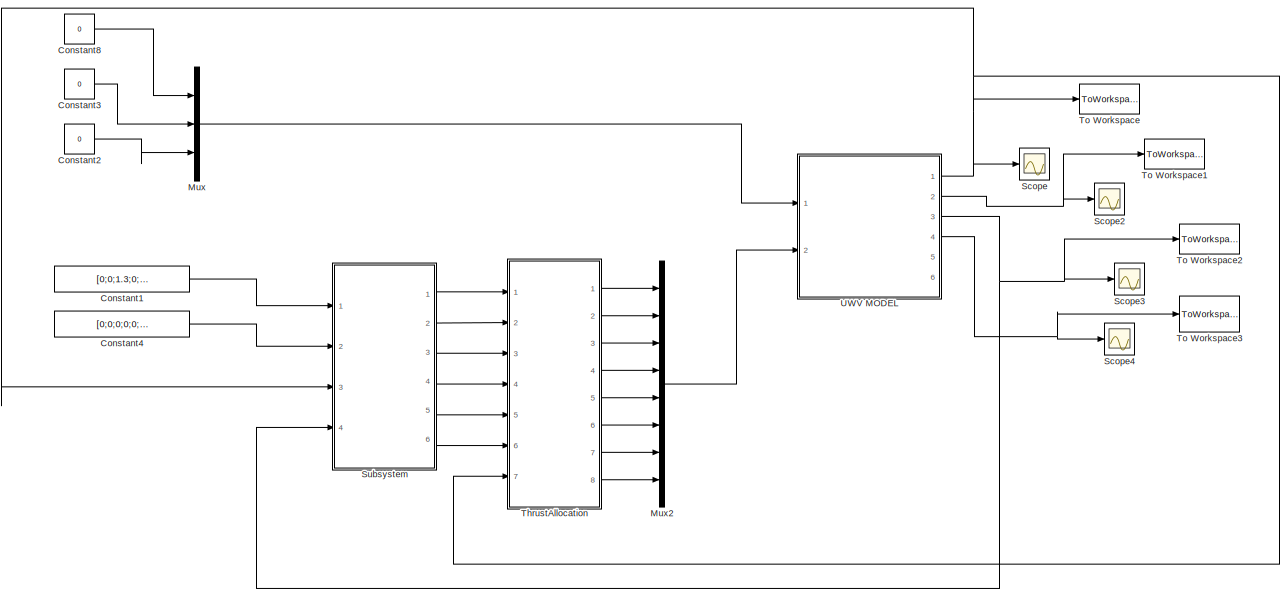
[diagram: root canvas - part 1/2, most of the canvas]
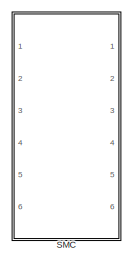
[diagram: root canvas - part 2/2, bottom left region]
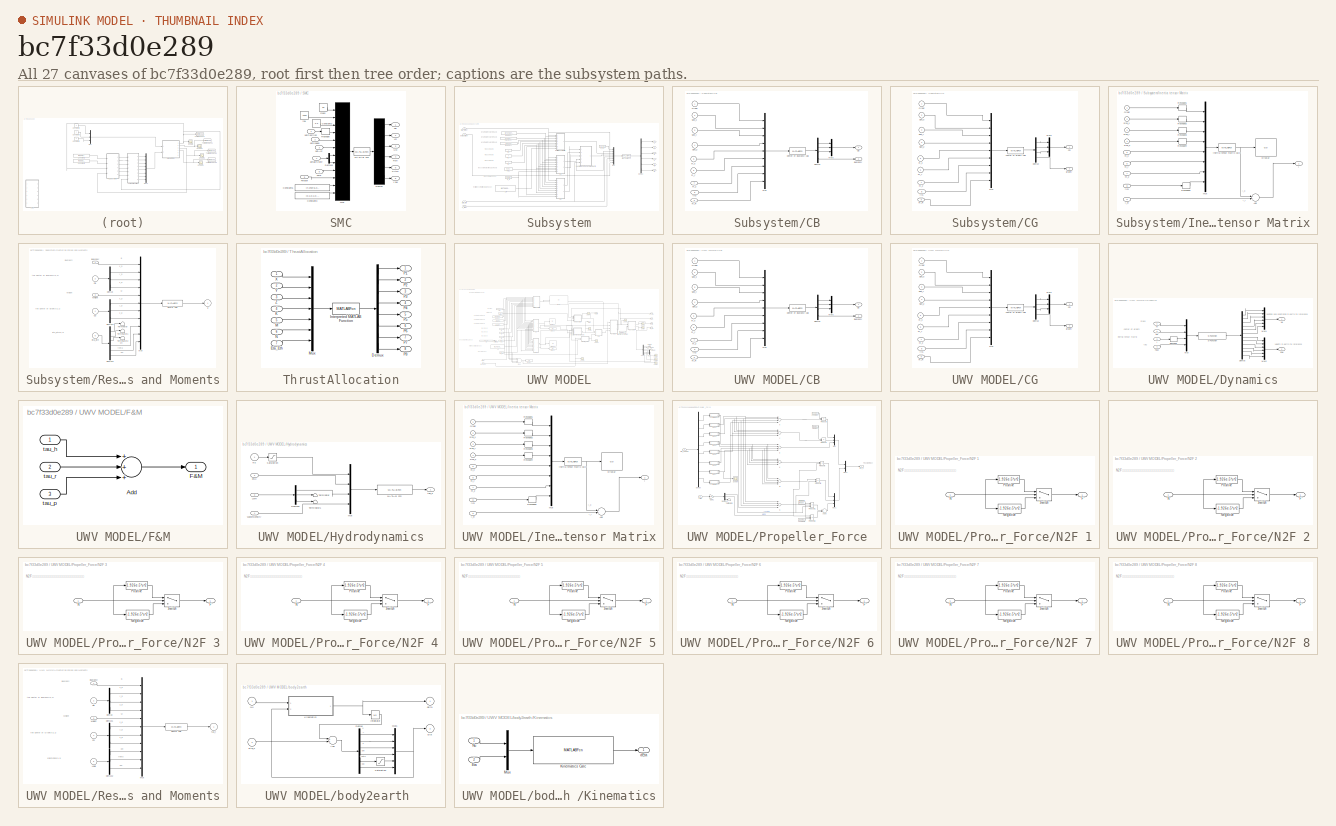
[diagram: thumbnail index - all 27 canvases of the model, root first then tree order]
MODEL slx_bc7f33d0e289
KIND model
CONFIG AbsTol = auto
CONFIG EnableMultiTasking = off
CONFIG FixedStep = 0.01
CONFIG MaxStep = auto
CONFIG MinStep = auto
CONFIG RelTol = 1e-3
CONFIG SampleTimeConstraint = Unconstrained
CONFIG Solver = FixedStepAuto
CONFIG SolverName = FixedStepAuto
CONFIG StartTime = 0.0
CONFIG StopTime = 16
BLOCK [Constant] Constant1
  Value = [0;0;1.3;0;0;0]
BLOCK [Constant] Constant2
  Value = 0
BLOCK [Constant] Constant3
  Value = 0
BLOCK [Constant] Constant4
  Value = [0;0;0;0;0;0]
BLOCK [Constant] Constant8
  Value = 0
BLOCK [Mux] Mux
  DisplayOption = bar
  Inputs = 3
  Ports = [3, 1]
BLOCK [Mux] Mux2
  DisplayOption = bar
  Inputs = 8
  Ports = [8, 1]
BLOCK [SubSystem] SMC
  Ports = [6, 6]
  RequestExecContextInheritance = off
BLOCK [Constant] SMC/Constant2
  Value = 0.5
BLOCK [Constant] SMC/Constant3
  Value = [0.1;0.1;0.1;0.1;0.1;0.1]
  VectorParams1D = off
BLOCK [Constant] SMC/Constant5
  Value = [4.2437;6.098;2.067]
  VectorParams1D = off
BLOCK [Demux] SMC/Demux
  Outputs = 6
  Ports = [1, 6]
BLOCK [Demux] SMC/Demux1
  DisplayOption = bar
  Outputs = 2
  Ports = [1, 2]
BLOCK [Outport] SMC/FB
  IconDisplay = Port number
BLOCK [Inport] SMC/Fwater
  IconDisplay = Port number
  Port = 5
BLOCK [Inport] SMC/Fwb
  IconDisplay = Port number
  Port = 6
BLOCK [Outport] SMC/LR
  IconDisplay = Port number
  Port = 2
BLOCK [MATLABFcn] SMC/MATLAB Fcn
  MATLABFcn = SlideMode001_6Control
  Output1D = off
  OutputDimensions = 6
  Ports = [1, 1]
BLOCK [Mux] SMC/Mux
  DisplayOption = signals
  Inputs = 12
  Ports = [12, 1]
BLOCK [Outport] SMC/Pitch
  IconDisplay = Port number
  Port = 5
BLOCK [Reshape] SMC/Reshape
  OutputDimensionality = Customize
  OutputDimensions = [6,1]
  Ports = [1, 1]
BLOCK [Outport] SMC/Roll
  IconDisplay = Port number
  Port = 4
BLOCK [Outport] SMC/UD
  IconDisplay = Port number
  Port = 3
BLOCK [Outport] SMC/Yaw
  IconDisplay = Port number
  Port = 6
BLOCK [Inport] SMC/actualState
  IconDisplay = Port number
  Port = 4
BLOCK [Constant] SMC/mass
  Value = 90
BLOCK [Constant] SMC/rou
  Value = 1000
BLOCK [Inport] SMC/setAcc
  IconDisplay = Port number
  Port = 3
BLOCK [Inport] SMC/setPosition
  IconDisplay = Port number
BLOCK [Inport] SMC/setSpeed
  IconDisplay = Port number
  Port = 2
BLOCK [Scope] Scope
  Floating = off
  NumInputPorts = 1
  Ports = [1]
  ShowLegends = off
BLOCK [Scope] Scope2
  Floating = off
  NumInputPorts = 1
  Ports = [1]
  ShowLegends = off
BLOCK [Scope] Scope3
  Floating = off
  NumInputPorts = 1
  Ports = [1]
  ShowLegends = off
BLOCK [Scope] Scope4
  Floating = off
  NumInputPorts = 1
  Ports = [1]
  ShowLegends = off
BLOCK [SubSystem] Subsystem
  Ports = [4, 6]
  RequestExecContextInheritance = off
BLOCK [SubSystem] Subsystem/CB
  Ports = [9, 2]
  RequestExecContextInheritance = off
BLOCK [Outport] Subsystem/CB/Buoyancy
  IconDisplay = Port number
  Port = 2
BLOCK [Outport] Subsystem/CB/CB
  IconDisplay = Port number
BLOCK [MATLABFcn] Subsystem/CB/Center of Buoyancy calc
  MATLABFcn = CB
  Output1D = off
  Ports = [1, 1]
BLOCK [Demux] Subsystem/CB/Demux
  DisplayOption = bar
  Ports = [1, 4]
BLOCK [Mux] Subsystem/CB/Mux
  DisplayOption = bar
  Inputs = 9
  Ports = [9, 1]
BLOCK [Mux] Subsystem/CB/Mux1
  DisplayOption = bar
  Inputs = 3
  Ports = [3, 1]
BLOCK [Inport] Subsystem/CB/Order
  IconDisplay = Port number
BLOCK [Inport] Subsystem/CB/m_R
  IconDisplay = Port number
  Port = 9
BLOCK [Inport] Subsystem/CB/m_x
  IconDisplay = Port number
  Port = 5
BLOCK [Inport] Subsystem/CB/m_y
  IconDisplay = Port number
  Port = 6
BLOCK [Inport] Subsystem/CB/m_z
  IconDisplay = Port number
  Port = 7
BLOCK [Inport] Subsystem/CB/ryG
  IconDisplay = Port number
  Port = 8
BLOCK [Inport] Subsystem/CB/size_x
  IconDisplay = Port number
  Port = 2
BLOCK [Inport] Subsystem/CB/size_y
  IconDisplay = Port number
  Port = 3
BLOCK [Inport] Subsystem/CB/size_z
  IconDisplay = Port number
  Port = 4
BLOCK [SubSystem] Subsystem/CG
  Ports = [9, 2]
  RequestExecContextInheritance = off
BLOCK [Outport] Subsystem/CG/CG
  IconDisplay = Port number
BLOCK [Demux] Subsystem/CG/Demux
  DisplayOption = bar
  Ports = [1, 4]
BLOCK [Mux] Subsystem/CG/Mux
  DisplayOption = bar
  Inputs = 9
  Ports = [9, 1]
BLOCK [Mux] Subsystem/CG/Mux1
  DisplayOption = bar
  Inputs = 3
  Ports = [3, 1]
BLOCK [Inport] Subsystem/CG/Order
  IconDisplay = Port number
BLOCK [MATLABFcn] Subsystem/CG/center of gravity calc
  MATLABFcn = CG
  Output1D = off
  Ports = [1, 1]
BLOCK [Outport] Subsystem/CG/gravity
  IconDisplay = Port number
  Port = 2
BLOCK [Inport] Subsystem/CG/m_R
  IconDisplay = Port number
  Port = 9
BLOCK [Inport] Subsystem/CG/m_x
  IconDisplay = Port number
  Port = 5
BLOCK [Inport] Subsystem/CG/m_y
  IconDisplay = Port number
  Port = 6
BLOCK [Inport] Subsystem/CG/m_z
  IconDisplay = Port number
  Port = 7
BLOCK [Inport] Subsystem/CG/ryG
  IconDisplay = Port number
  Port = 8
BLOCK [Inport] Subsystem/CG/size_x
  IconDisplay = Port number
  Port = 2
BLOCK [Inport] Subsystem/CG/size_y
  IconDisplay = Port number
  Port = 3
BLOCK [Inport] Subsystem/CG/size_z
  IconDisplay = Port number
  Port = 4
BLOCK [Demux] Subsystem/Demux
  DisplayOption = bar
  Outputs = 6
  Ports = [1, 6]
BLOCK [Inport] Subsystem/Eta_Eth
  IconDisplay = Port number
  Port = 3
BLOCK [Inport] Subsystem/Eta_Order
  IconDisplay = Port number
BLOCK [Constant] Subsystem/I_R
  Value = [4.2769 0 0;0 10.546 0;0 0 11.5899]
BLOCK [SubSystem] Subsystem/Inertia tensor Matrix
  Ports = [9, 1]
  RequestExecContextInheritance = off
BLOCK [Sum] Subsystem/Inertia tensor Matrix/Add
  InputSameDT = off
  OutDataTypeStr = Inherit: Inherit via internal rule
  Ports = [2, 1]
  SaturateOnIntegerOverflow = off
BLOCK [Display] Subsystem/Inertia tensor Matrix/Display
  Decimation = 1
  Ports = [1]
BLOCK [Outport] Subsystem/Inertia tensor Matrix/I
  IconDisplay = Port number
BLOCK [Inport] Subsystem/Inertia tensor Matrix/I_R
  IconDisplay = Port number
  Port = 9
BLOCK [Mux] Subsystem/Inertia tensor Matrix/Mux
  DisplayOption = bar
  Inputs = 8
  Ports = [8, 1]
BLOCK [Inport] Subsystem/Inertia tensor Matrix/Order
  IconDisplay = Port number
BLOCK [Reshape] Subsystem/Inertia tensor Matrix/Reshape1
  OutputDimensions = 9
  Ports = [1, 1]
BLOCK [Reshape] Subsystem/Inertia tensor Matrix/Reshape2
  OutputDimensions = 9
  Ports = [1, 1]
BLOCK [Reshape] Subsystem/Inertia tensor Matrix/Reshape3
  OutputDimensions = 9
  Ports = [1, 1]
BLOCK [Reshape] Subsystem/Inertia tensor Matrix/Reshape4
  OutputDimensions = 9
  Ports = [1, 1]
BLOCK [Reshape] Subsystem/Inertia tensor Matrix/Reshape5
  OutputDimensions = 9
  Ports = [1, 1]
BLOCK [MATLABFcn] Subsystem/Inertia tensor Matrix/inertia tensor matrix calc
  MATLABFcn = InertiaTensorMatrix
  Output1D = off
  Ports = [1, 1]
BLOCK [Inport] Subsystem/Inertia tensor Matrix/m_x
  IconDisplay = Port number
  Port = 5
BLOCK [Inport] Subsystem/Inertia tensor Matrix/m_y
  IconDisplay = Port number
  Port = 6
BLOCK [Inport] Subsystem/Inertia tensor Matrix/m_z
  IconDisplay = Port number
  Port = 7
BLOCK [Inport] Subsystem/Inertia tensor Matrix/ryG
  IconDisplay = Port number
  Port = 8
BLOCK [Inport] Subsystem/Inertia tensor Matrix/size_x
  IconDisplay = Port number
  Port = 2
BLOCK [Inport] Subsystem/Inertia tensor Matrix/size_y
  IconDisplay = Port number
  Port = 3
BLOCK [Inport] Subsystem/Inertia tensor Matrix/size_z
  IconDisplay = Port number
  Port = 4
BLOCK [Outport] Subsystem/K
  IconDisplay = Port number
  Port = 4
BLOCK [Outport] Subsystem/M
  IconDisplay = Port number
  Port = 5
BLOCK [MATLABFcn] Subsystem/MATLAB Fcn
  MATLABFcn = SMC
  Output1D = off
  OutputDimensions = 6
  Ports = [1, 1]
BLOCK [Mux] Subsystem/Mux
  DisplayOption = bar
  Inputs = 8
  Ports = [8, 1]
BLOCK [Outport] Subsystem/N
  IconDisplay = Port number
  Port = 6
BLOCK [SubSystem] Subsystem/Restoring Forces and Moments
  Ports = [5, 1]
  RequestExecContextInheritance = off
BLOCK [Inport] Subsystem/Restoring Forces and Moments/Buoyancy
  IconDisplay = Port number
BLOCK [Inport] Subsystem/Restoring Forces and Moments/CB
  IconDisplay = Port number
  Port = 2
BLOCK [Inport] Subsystem/Restoring Forces and Moments/CG
  IconDisplay = Port number
  Port = 4
BLOCK [Demux] Subsystem/Restoring Forces and Moments/Demux
  DisplayOption = bar
  Outputs = 3
  Ports = [1, 3]
BLOCK [Demux] Subsystem/Restoring Forces and Moments/Demux1
  DisplayOption = bar
  Outputs = 3
  Ports = [1, 3]
BLOCK [Demux] Subsystem/Restoring Forces and Moments/Demux2
  DisplayOption = bar
  Outputs = 6
  Ports = [1, 6]
BLOCK [Inport] Subsystem/Restoring Forces and Moments/Eta_Eth
  IconDisplay = Port number
  Port = 5
BLOCK [Mux] Subsystem/Restoring Forces and Moments/Mux
  DisplayOption = bar
  Inputs = 11
  Ports = [11, 1]
BLOCK [MATLABFcn] Subsystem/Restoring Forces and Moments/RFMM Calc
  MATLABFcn = RFMM
  OutputDimensions = 6
  Ports = [1, 1]
BLOCK [Terminator] Subsystem/Restoring Forces and Moments/Terminator
BLOCK [Terminator] Subsystem/Restoring Forces and Moments/Terminator1
BLOCK [Terminator] Subsystem/Restoring Forces and Moments/Terminator2
BLOCK [Inport] Subsystem/Restoring Forces and Moments/Weight
  IconDisplay = Port number
  Port = 3
BLOCK [Outport] Subsystem/Restoring Forces and Moments/g
  IconDisplay = Port number
BLOCK [Inport] Subsystem/V_Bdy
  IconDisplay = Port number
  Port = 4
BLOCK [Outport] Subsystem/X
  IconDisplay = Port number
BLOCK [Outport] Subsystem/Y
  IconDisplay = Port number
  Port = 2
BLOCK [Outport] Subsystem/Z
  IconDisplay = Port number
  Port = 3
BLOCK [Constant] Subsystem/[xa,xb,xc]
  Value = [0.734;0.0445;0.0735]
BLOCK [Constant] Subsystem/[ya,yb,yc]
  Value = [0.1065;0.704;0.0445]
BLOCK [Constant] Subsystem/[za,zb,zc]
  Value = [0.11412;0.038;0.228]
BLOCK [Inport] Subsystem/deta_Order
  IconDisplay = Port number
  Port = 2
BLOCK [Constant] Subsystem/m_R
  Value = 90.336
BLOCK [Constant] Subsystem/m_R1
  Value = 100.336
BLOCK [Constant] Subsystem/mx
  Value = 4
BLOCK [Constant] Subsystem/my
  Value = 4
BLOCK [Constant] Subsystem/mz
  Value = 2
BLOCK [Constant] Subsystem/ryG1
  Value = [0;0;-0.1]
BLOCK [SubSystem] ThrustAllocation
  Ports = [7, 8]
  RequestExecContextInheritance = off
BLOCK [Demux] ThrustAllocation/Demux
  DisplayOption = bar
  Outputs = 8
  Ports = [1, 8]
BLOCK [Inport] ThrustAllocation/Eta_Eth
  IconDisplay = Port number
  Port = 7
BLOCK [MATLABFcn] ThrustAllocation/Interpreted MATLAB Function
  MATLABFcn = ThrustAllocation
  OutputDimensions = 8
  Ports = [1, 1]
BLOCK [Inport] ThrustAllocation/K
  IconDisplay = Port number
  Port = 4
BLOCK [Inport] ThrustAllocation/M
  IconDisplay = Port number
  Port = 5
BLOCK [Mux] ThrustAllocation/Mux
  DisplayOption = bar
  Inputs = 7
  Ports = [7, 1]
BLOCK [Inport] ThrustAllocation/N
  IconDisplay = Port number
  Port = 6
BLOCK [Outport] ThrustAllocation/P1
  IconDisplay = Port number
BLOCK [Outport] ThrustAllocation/P2
  IconDisplay = Port number
  Port = 2
BLOCK [Outport] ThrustAllocation/P3
  IconDisplay = Port number
  Port = 3
BLOCK [Outport] ThrustAllocation/P4
  IconDisplay = Port number
  Port = 4
BLOCK [Outport] ThrustAllocation/P5
  IconDisplay = Port number
  Port = 5
BLOCK [Outport] ThrustAllocation/P6
  IconDisplay = Port number
  Port = 6
BLOCK [Outport] ThrustAllocation/P7
  IconDisplay = Port number
  Port = 7
BLOCK [Outport] ThrustAllocation/P8
  IconDisplay = Port number
  Port = 8
BLOCK [Inport] ThrustAllocation/X
  IconDisplay = Port number
BLOCK [Inport] ThrustAllocation/Y
  IconDisplay = Port number
  Port = 2
BLOCK [Inport] ThrustAllocation/Z
  IconDisplay = Port number
  Port = 3
BLOCK [ToWorkspace] To Workspace
  FixptAsFi = on
  MaxDataPoints = inf
  Ports = [1]
  SampleTime = -1
  Save2DSignal = 3-D array (concatenate along third dimension)
  SaveFormat = Timeseries
  VariableName = Eta_Eth
BLOCK [ToWorkspace] To Workspace1
  FixptAsFi = on
  MaxDataPoints = inf
  Ports = [1]
  SampleTime = -1
  Save2DSignal = 3-D array (concatenate along third dimension)
  SaveFormat = Timeseries
  VariableName = V_Eth
BLOCK [ToWorkspace] To Workspace2
  FixptAsFi = on
  MaxDataPoints = inf
  Ports = [1]
  SampleTime = -1
  Save2DSignal = 3-D array (concatenate along third dimension)
  SaveFormat = Timeseries
  VariableName = V_Bdy
BLOCK [ToWorkspace] To Workspace3
  FixptAsFi = on
  MaxDataPoints = inf
  Ports = [1]
  SampleTime = -1
  Save2DSignal = 3-D array (concatenate along third dimension)
  SaveFormat = Timeseries
  VariableName = Acc_Bdy
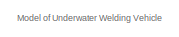
[diagram: UWV MODEL - part 1/4, top left region]
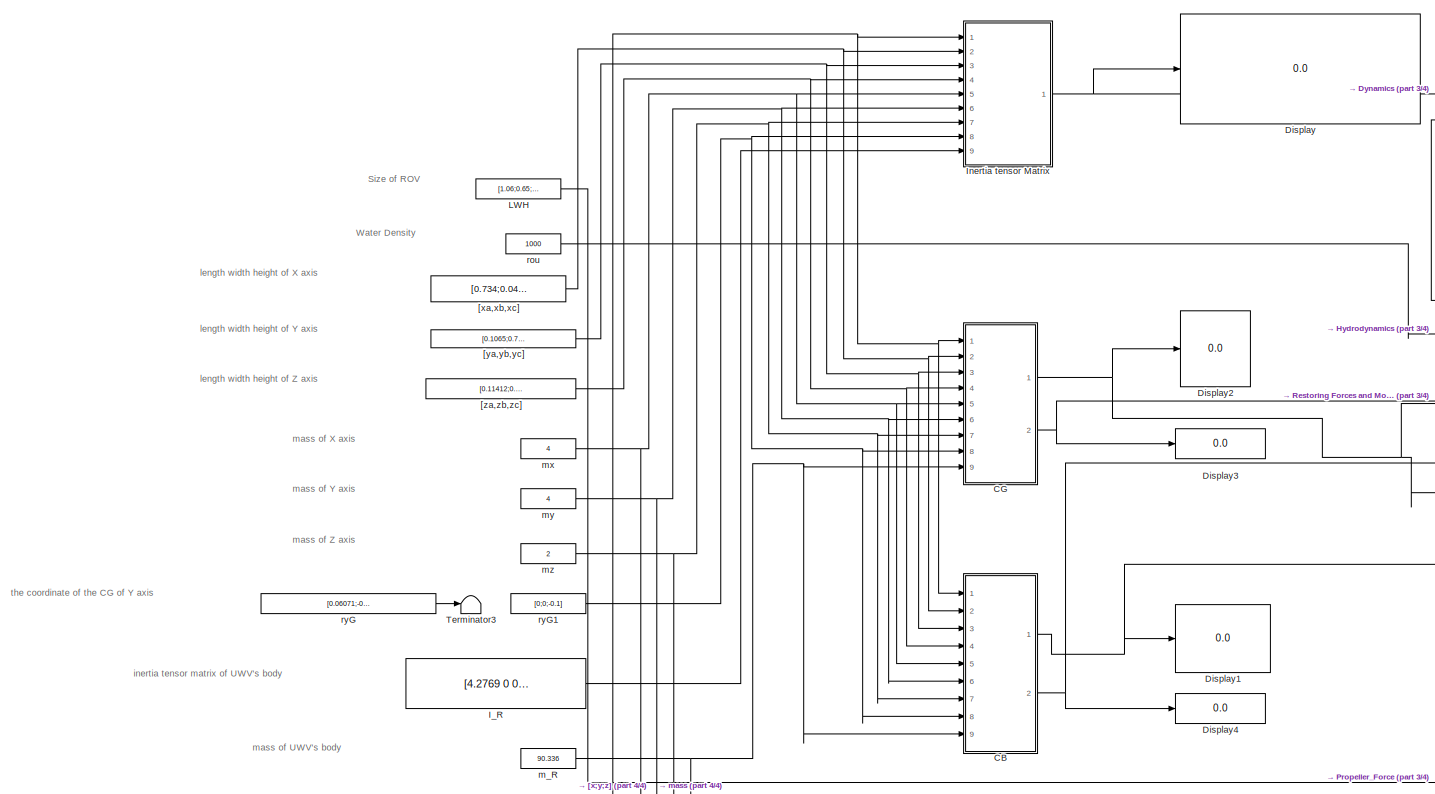
[diagram: UWV MODEL - part 2/4, left side, full height]
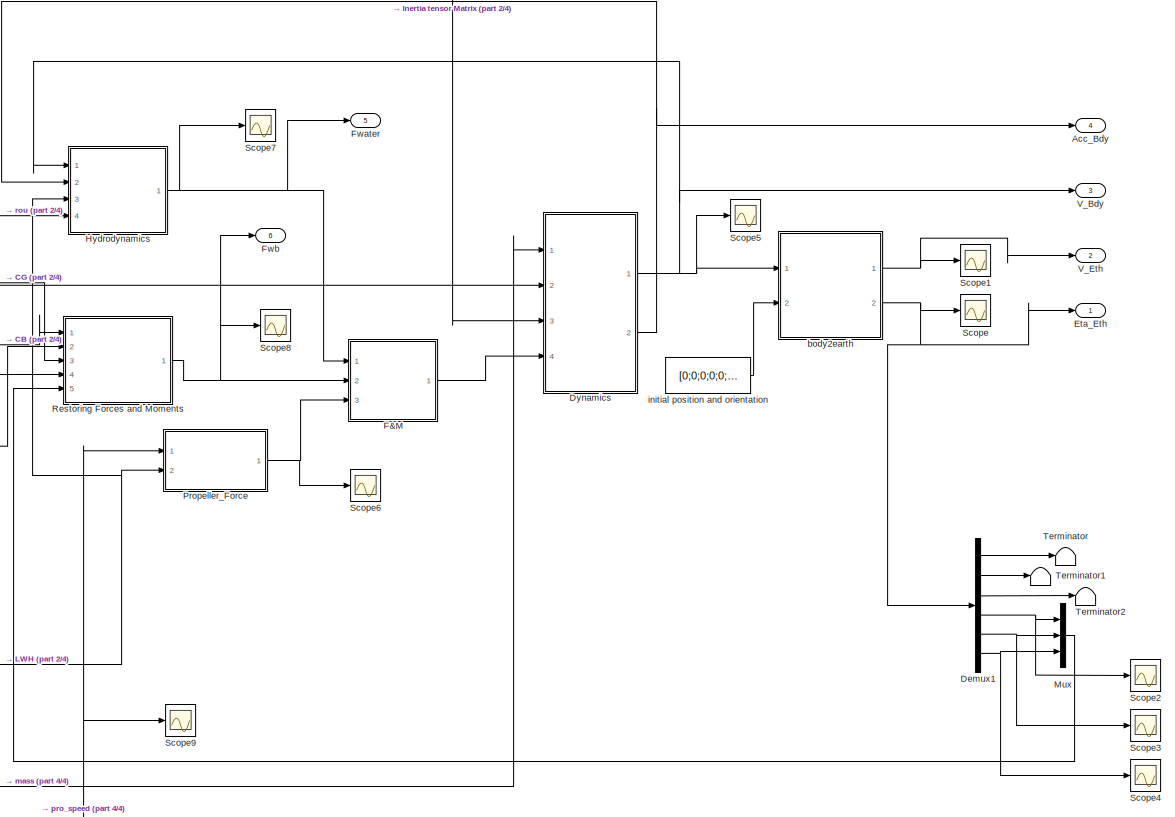
[diagram: UWV MODEL - part 3/4, right side, full height]
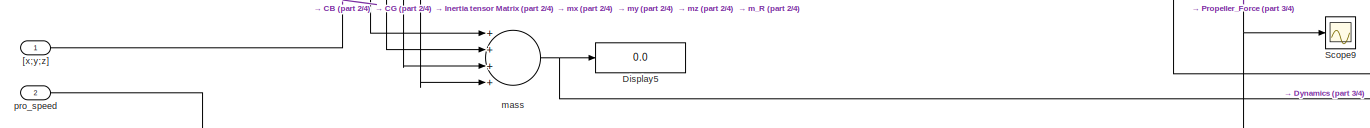
[diagram: UWV MODEL - part 4/4, bottom center region]
BLOCK [SubSystem] UWV MODEL
  Ports = [2, 6]
  RequestExecContextInheritance = off
BLOCK [Outport] UWV MODEL/Acc_Bdy
  IconDisplay = Port number
  Port = 4
BLOCK [SubSystem] UWV MODEL/CB
  Ports = [9, 2]
  RequestExecContextInheritance = off
BLOCK [Outport] UWV MODEL/CB/Buoyancy
  IconDisplay = Port number
  Port = 2
BLOCK [Outport] UWV MODEL/CB/CB
  IconDisplay = Port number
BLOCK [MATLABFcn] UWV MODEL/CB/Center of Buoyancy calc
  MATLABFcn = CB
  Output1D = off
  Ports = [1, 1]
BLOCK [Demux] UWV MODEL/CB/Demux
  DisplayOption = bar
  Ports = [1, 4]
BLOCK [Mux] UWV MODEL/CB/Mux
  DisplayOption = bar
  Inputs = 9
  Ports = [9, 1]
BLOCK [Mux] UWV MODEL/CB/Mux1
  DisplayOption = bar
  Inputs = 3
  Ports = [3, 1]
BLOCK [Inport] UWV MODEL/CB/Order
  IconDisplay = Port number
BLOCK [Inport] UWV MODEL/CB/m_R
  IconDisplay = Port number
  Port = 9
BLOCK [Inport] UWV MODEL/CB/m_x
  IconDisplay = Port number
  Port = 5
BLOCK [Inport] UWV MODEL/CB/m_y
  IconDisplay = Port number
  Port = 6
BLOCK [Inport] UWV MODEL/CB/m_z
  IconDisplay = Port number
  Port = 7
BLOCK [Inport] UWV MODEL/CB/ryG
  IconDisplay = Port number
  Port = 8
BLOCK [Inport] UWV MODEL/CB/size_x
  IconDisplay = Port number
  Port = 2
BLOCK [Inport] UWV MODEL/CB/size_y
  IconDisplay = Port number
  Port = 3
BLOCK [Inport] UWV MODEL/CB/size_z
  IconDisplay = Port number
  Port = 4
BLOCK [SubSystem] UWV MODEL/CG
  Ports = [9, 2]
  RequestExecContextInheritance = off
BLOCK [Outport] UWV MODEL/CG/CG
  IconDisplay = Port number
BLOCK [Demux] UWV MODEL/CG/Demux
  DisplayOption = bar
  Ports = [1, 4]
BLOCK [Mux] UWV MODEL/CG/Mux
  DisplayOption = bar
  Inputs = 9
  Ports = [9, 1]
BLOCK [Mux] UWV MODEL/CG/Mux1
  DisplayOption = bar
  Inputs = 3
  Ports = [3, 1]
BLOCK [Inport] UWV MODEL/CG/Order
  IconDisplay = Port number
BLOCK [MATLABFcn] UWV MODEL/CG/center of gravity calc
  MATLABFcn = CG
  Output1D = off
  Ports = [1, 1]
BLOCK [Outport] UWV MODEL/CG/gravity
  IconDisplay = Port number
  Port = 2
BLOCK [Inport] UWV MODEL/CG/m_R
  IconDisplay = Port number
  Port = 9
BLOCK [Inport] UWV MODEL/CG/m_x
  IconDisplay = Port number
  Port = 5
BLOCK [Inport] UWV MODEL/CG/m_y
  IconDisplay = Port number
  Port = 6
BLOCK [Inport] UWV MODEL/CG/m_z
  IconDisplay = Port number
  Port = 7
BLOCK [Inport] UWV MODEL/CG/ryG
  IconDisplay = Port number
  Port = 8
BLOCK [Inport] UWV MODEL/CG/size_x
  IconDisplay = Port number
  Port = 2
BLOCK [Inport] UWV MODEL/CG/size_y
  IconDisplay = Port number
  Port = 3
BLOCK [Inport] UWV MODEL/CG/size_z
  IconDisplay = Port number
  Port = 4
BLOCK [Demux] UWV MODEL/Demux1
  DisplayOption = bar
  Outputs = 6
  Ports = [1, 6]
BLOCK [Display] UWV MODEL/Display
  Decimation = 1
  Ports = [1]
BLOCK [Display] UWV MODEL/Display1
  Decimation = 1
  Ports = [1]
BLOCK [Display] UWV MODEL/Display2
  Decimation = 1
  Ports = [1]
BLOCK [Display] UWV MODEL/Display3
  Decimation = 1
  Ports = [1]
BLOCK [Display] UWV MODEL/Display4
  Decimation = 1
  Ports = [1]
BLOCK [Display] UWV MODEL/Display5
  Decimation = 1
  Ports = [1]
BLOCK [SubSystem] UWV MODEL/Dynamics
  Ports = [4, 2]
  RequestExecContextInheritance = off
BLOCK [Inport] UWV MODEL/Dynamics/CG
  IconDisplay = Port number
  Port = 2
BLOCK [Demux] UWV MODEL/Dynamics/Demux
  DisplayOption = bar
  Outputs = 12
  Ports = [1, 12]
BLOCK [Inport] UWV MODEL/Dynamics/F&M
  IconDisplay = Port number
  Port = 4
BLOCK [Inport] UWV MODEL/Dynamics/I
  IconDisplay = Port number
  Port = 3
BLOCK [Mux] UWV MODEL/Dynamics/Mux
  DisplayOption = bar
  Ports = [4, 1]
BLOCK [Mux] UWV MODEL/Dynamics/Mux1
  DisplayOption = bar
  Inputs = 6
  Ports = [6, 1]
BLOCK [Mux] UWV MODEL/Dynamics/Mux2
  DisplayOption = bar
  Inputs = 6
  Ports = [6, 1]
BLOCK [Outport] UWV MODEL/Dynamics/Nu
  IconDisplay = Port number
BLOCK [Reshape] UWV MODEL/Dynamics/Reshape
  Ports = [1, 1]
BLOCK [S-Function] UWV MODEL/Dynamics/S-Function
  EnableBusSupport = off
  FunctionName = Dynamics
  Ports = [1, 1]
BLOCK [Outport] UWV MODEL/Dynamics/dNu
  IconDisplay = Port number
  Port = 2
BLOCK [Inport] UWV MODEL/Dynamics/m
  IconDisplay = Port number
BLOCK [Outport] UWV MODEL/Eta_Eth
  IconDisplay = Port number
BLOCK [SubSystem] UWV MODEL/F&M
  Ports = [3, 1]
  RequestExecContextInheritance = off
BLOCK [Sum] UWV MODEL/F&M/Add
  InputSameDT = off
  Inputs = +++
  OutDataTypeStr = Inherit: Inherit via internal rule
  Ports = [3, 1]
  SaturateOnIntegerOverflow = off
BLOCK [Outport] UWV MODEL/F&M/F&M
  IconDisplay = Port number
BLOCK [Inport] UWV MODEL/F&M/tau_h
  IconDisplay = Port number
BLOCK [Inport] UWV MODEL/F&M/tau_p
  IconDisplay = Port number
  Port = 3
BLOCK [Inport] UWV MODEL/F&M/tau_r
  IconDisplay = Port number
  Port = 2
BLOCK [Outport] UWV MODEL/Fwater
  IconDisplay = Port number
  Port = 5
BLOCK [Outport] UWV MODEL/Fwb
  IconDisplay = Port number
  Port = 6
BLOCK [SubSystem] UWV MODEL/Hydrodynamics
  Ports = [4, 1]
  RequestExecContextInheritance = off
BLOCK [Demux] UWV MODEL/Hydrodynamics/Demux5
  DisplayOption = bar
  Outputs = 3
  Ports = [1, 3]
BLOCK [Inport] UWV MODEL/Hydrodynamics/LWH
  IconDisplay = Port number
  Port = 3
BLOCK [MATLABFcn] UWV MODEL/Hydrodynamics/MATLAB Fcn
  MATLABFcn = Hydrodynamics
  Output1D = off
  OutputDimensions = 6
  Ports = [1, 1]
BLOCK [Mux] UWV MODEL/Hydrodynamics/Mux
  DisplayOption = bar
  Ports = [4, 1]
BLOCK [Inport] UWV MODEL/Hydrodynamics/Nu
  IconDisplay = Port number
BLOCK [Saturate] UWV MODEL/Hydrodynamics/Saturation
  InputPortMap = u0
  LowerLimit = -0.8
  Ports = [1, 1]
  UpperLimit = 0.8
BLOCK [Terminator] UWV MODEL/Hydrodynamics/Terminator
BLOCK [Terminator] UWV MODEL/Hydrodynamics/Terminator1
BLOCK [Inport] UWV MODEL/Hydrodynamics/WaterDensity
  IconDisplay = Port number
  Port = 4
BLOCK [Inport] UWV MODEL/Hydrodynamics/dNu
  IconDisplay = Port number
  Port = 2
BLOCK [Outport] UWV MODEL/Hydrodynamics/tau_h
  IconDisplay = Port number
BLOCK [Constant] UWV MODEL/I_R
  Value = [4.2769 0 0;0 10.546 0;0 0 11.5899]
BLOCK [SubSystem] UWV MODEL/Inertia tensor Matrix
  Ports = [9, 1]
  RequestExecContextInheritance = off
BLOCK [Sum] UWV MODEL/Inertia tensor Matrix/Add
  InputSameDT = off
  OutDataTypeStr = Inherit: Inherit via internal rule
  Ports = [2, 1]
  SaturateOnIntegerOverflow = off
BLOCK [Display] UWV MODEL/Inertia tensor Matrix/Display
  Decimation = 1
  Ports = [1]
BLOCK [Outport] UWV MODEL/Inertia tensor Matrix/I
  IconDisplay = Port number
BLOCK [Inport] UWV MODEL/Inertia tensor Matrix/I_R
  IconDisplay = Port number
  Port = 9
BLOCK [Mux] UWV MODEL/Inertia tensor Matrix/Mux
  DisplayOption = bar
  Inputs = 8
  Ports = [8, 1]
BLOCK [Inport] UWV MODEL/Inertia tensor Matrix/Order
  IconDisplay = Port number
BLOCK [Reshape] UWV MODEL/Inertia tensor Matrix/Reshape1
  OutputDimensions = 9
  Ports = [1, 1]
BLOCK [Reshape] UWV MODEL/Inertia tensor Matrix/Reshape2
  OutputDimensions = 9
  Ports = [1, 1]
BLOCK [Reshape] UWV MODEL/Inertia tensor Matrix/Reshape3
  OutputDimensions = 9
  Ports = [1, 1]
BLOCK [Reshape] UWV MODEL/Inertia tensor Matrix/Reshape4
  OutputDimensions = 9
  Ports = [1, 1]
BLOCK [Reshape] UWV MODEL/Inertia tensor Matrix/Reshape5
  OutputDimensions = 9
  Ports = [1, 1]
BLOCK [MATLABFcn] UWV MODEL/Inertia tensor Matrix/inertia tensor matrix calc
  MATLABFcn = InertiaTensorMatrix
  Output1D = off
  Ports = [1, 1]
BLOCK [Inport] UWV MODEL/Inertia tensor Matrix/m_x
  IconDisplay = Port number
  Port = 5
BLOCK [Inport] UWV MODEL/Inertia tensor Matrix/m_y
  IconDisplay = Port number
  Port = 6
BLOCK [Inport] UWV MODEL/Inertia tensor Matrix/m_z
  IconDisplay = Port number
  Port = 7
BLOCK [Inport] UWV MODEL/Inertia tensor Matrix/ryG
  IconDisplay = Port number
  Port = 8
BLOCK [Inport] UWV MODEL/Inertia tensor Matrix/size_x
  IconDisplay = Port number
  Port = 2
BLOCK [Inport] UWV MODEL/Inertia tensor Matrix/size_y
  IconDisplay = Port number
  Port = 3
BLOCK [Inport] UWV MODEL/Inertia tensor Matrix/size_z
  IconDisplay = Port number
  Port = 4
BLOCK [Constant] UWV MODEL/LWH
  Value = [1.06;0.65;0.66]
BLOCK [Mux] UWV MODEL/Mux
  DisplayOption = bar
  Inputs = 3
  Ports = [3, 1]
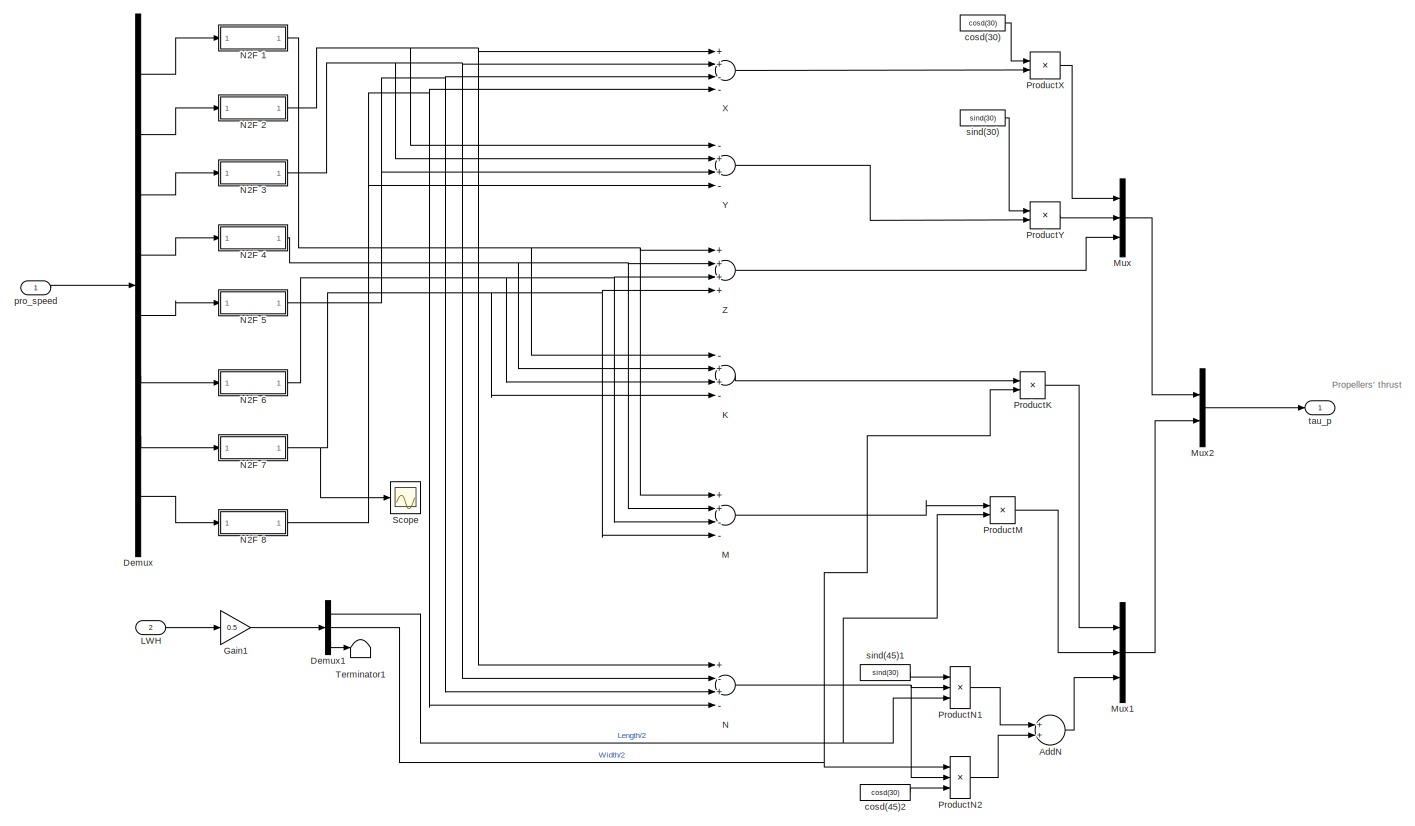
[diagram: UWV MODEL/Propeller_Force - part 1/1, most of the canvas]
BLOCK [SubSystem] UWV MODEL/Propeller_Force
  Ports = [2, 1]
  RequestExecContextInheritance = off
BLOCK [Sum] UWV MODEL/Propeller_Force/AddN
  InputSameDT = off
  OutDataTypeStr = Inherit: Inherit via internal rule
  Ports = [2, 1]
  SaturateOnIntegerOverflow = off
BLOCK [Demux] UWV MODEL/Propeller_Force/Demux
  DisplayOption = bar
  Outputs = 8
  Ports = [1, 8]
BLOCK [Demux] UWV MODEL/Propeller_Force/Demux1
  DisplayOption = bar
  Outputs = 3
  Ports = [1, 3]
BLOCK [Gain] UWV MODEL/Propeller_Force/Gain1
  Gain = 0.5
  OutDataTypeStr = Inherit: Inherit via internal rule
  ParamDataTypeStr = Inherit: Inherit via internal rule
  SaturateOnIntegerOverflow = off
BLOCK [Sum] UWV MODEL/Propeller_Force/K
  InputSameDT = off
  Inputs = -++-
  OutDataTypeStr = Inherit: Inherit via internal rule
  Ports = [4, 1]
  SaturateOnIntegerOverflow = off
BLOCK [Inport] UWV MODEL/Propeller_Force/LWH
  IconDisplay = Port number
  Port = 2
BLOCK [Sum] UWV MODEL/Propeller_Force/M
  InputSameDT = off
  Inputs = ++--
  OutDataTypeStr = Inherit: Inherit via internal rule
  Ports = [4, 1]
  SaturateOnIntegerOverflow = off
BLOCK [Mux] UWV MODEL/Propeller_Force/Mux
  DisplayOption = bar
  Inputs = 3
  Ports = [3, 1]
BLOCK [Mux] UWV MODEL/Propeller_Force/Mux1
  DisplayOption = bar
  Inputs = 3
  Ports = [3, 1]
BLOCK [Mux] UWV MODEL/Propeller_Force/Mux2
  DisplayOption = bar
  Inputs = 2
  Ports = [2, 1]
BLOCK [Sum] UWV MODEL/Propeller_Force/N
  InputSameDT = off
  Inputs = +-+-
  OutDataTypeStr = Inherit: Inherit via internal rule
  Ports = [4, 1]
  SaturateOnIntegerOverflow = off
BLOCK [SubSystem] UWV MODEL/Propeller_Force/N2F 1
  Ports = [1, 1]
  RequestExecContextInheritance = off
BLOCK [Outport] UWV MODEL/Propeller_Force/N2F 1/F
  IconDisplay = Port number
BLOCK [Inport] UWV MODEL/Propeller_Force/N2F 1/N
  IconDisplay = Port number
BLOCK [Fcn] UWV MODEL/Propeller_Force/N2F 1/Negative
  Expr = -1.926e-5*u^2
BLOCK [Fcn] UWV MODEL/Propeller_Force/N2F 1/Positive
  Expr = 1.926e-5*u^2
BLOCK [Switch] UWV MODEL/Propeller_Force/N2F 1/Switch
  Criteria = u2 > Threshold
  InputSameDT = off
  SaturateOnIntegerOverflow = off
BLOCK [SubSystem] UWV MODEL/Propeller_Force/N2F 2
  Ports = [1, 1]
  RequestExecContextInheritance = off
BLOCK [Outport] UWV MODEL/Propeller_Force/N2F 2/F
  IconDisplay = Port number
BLOCK [Inport] UWV MODEL/Propeller_Force/N2F 2/N
  IconDisplay = Port number
BLOCK [Fcn] UWV MODEL/Propeller_Force/N2F 2/Negative
  Expr = -1.926e-5*u^2
BLOCK [Fcn] UWV MODEL/Propeller_Force/N2F 2/Positive
  Expr = 1.926e-5*u^2
BLOCK [Switch] UWV MODEL/Propeller_Force/N2F 2/Switch
  Criteria = u2 > Threshold
  InputSameDT = off
  SaturateOnIntegerOverflow = off
BLOCK [SubSystem] UWV MODEL/Propeller_Force/N2F 3
  Ports = [1, 1]
  RequestExecContextInheritance = off
BLOCK [Outport] UWV MODEL/Propeller_Force/N2F 3/F
  IconDisplay = Port number
BLOCK [Inport] UWV MODEL/Propeller_Force/N2F 3/N
  IconDisplay = Port number
BLOCK [Fcn] UWV MODEL/Propeller_Force/N2F 3/Negative
  Expr = -1.926e-5*u^2
BLOCK [Fcn] UWV MODEL/Propeller_Force/N2F 3/Positive
  Expr = 1.926e-5*u^2
BLOCK [Switch] UWV MODEL/Propeller_Force/N2F 3/Switch
  Criteria = u2 > Threshold
  InputSameDT = off
  SaturateOnIntegerOverflow = off
BLOCK [SubSystem] UWV MODEL/Propeller_Force/N2F 4
  Ports = [1, 1]
  RequestExecContextInheritance = off
BLOCK [Outport] UWV MODEL/Propeller_Force/N2F 4/F
  IconDisplay = Port number
BLOCK [Inport] UWV MODEL/Propeller_Force/N2F 4/N
  IconDisplay = Port number
BLOCK [Fcn] UWV MODEL/Propeller_Force/N2F 4/Negative
  Expr = -1.926e-5*u^2
BLOCK [Fcn] UWV MODEL/Propeller_Force/N2F 4/Positive
  Expr = 1.926e-5*u^2
BLOCK [Switch] UWV MODEL/Propeller_Force/N2F 4/Switch
  Criteria = u2 > Threshold
  InputSameDT = off
  SaturateOnIntegerOverflow = off
BLOCK [SubSystem] UWV MODEL/Propeller_Force/N2F 5
  Ports = [1, 1]
  RequestExecContextInheritance = off
BLOCK [Outport] UWV MODEL/Propeller_Force/N2F 5/F
  IconDisplay = Port number
BLOCK [Inport] UWV MODEL/Propeller_Force/N2F 5/N
  IconDisplay = Port number
BLOCK [Fcn] UWV MODEL/Propeller_Force/N2F 5/Negative
  Expr = -1.926e-5*u^2
BLOCK [Fcn] UWV MODEL/Propeller_Force/N2F 5/Positive
  Expr = 1.926e-5*u^2
BLOCK [Switch] UWV MODEL/Propeller_Force/N2F 5/Switch
  Criteria = u2 > Threshold
  InputSameDT = off
  SaturateOnIntegerOverflow = off
BLOCK [SubSystem] UWV MODEL/Propeller_Force/N2F 6
  Ports = [1, 1]
  RequestExecContextInheritance = off
BLOCK [Outport] UWV MODEL/Propeller_Force/N2F 6/F
  IconDisplay = Port number
BLOCK [Inport] UWV MODEL/Propeller_Force/N2F 6/N
  IconDisplay = Port number
BLOCK [Fcn] UWV MODEL/Propeller_Force/N2F 6/Negative
  Expr = -1.926e-5*u^2
BLOCK [Fcn] UWV MODEL/Propeller_Force/N2F 6/Positive
  Expr = 1.926e-5*u^2
BLOCK [Switch] UWV MODEL/Propeller_Force/N2F 6/Switch
  Criteria = u2 > Threshold
  InputSameDT = off
  SaturateOnIntegerOverflow = off
BLOCK [SubSystem] UWV MODEL/Propeller_Force/N2F 7
  Ports = [1, 1]
  RequestExecContextInheritance = off
BLOCK [Outport] UWV MODEL/Propeller_Force/N2F 7/F
  IconDisplay = Port number
BLOCK [Inport] UWV MODEL/Propeller_Force/N2F 7/N
  IconDisplay = Port number
BLOCK [Fcn] UWV MODEL/Propeller_Force/N2F 7/Negative
  Expr = -1.926e-5*u^2
BLOCK [Fcn] UWV MODEL/Propeller_Force/N2F 7/Positive
  Expr = 1.926e-5*u^2
BLOCK [Switch] UWV MODEL/Propeller_Force/N2F 7/Switch
  Criteria = u2 > Threshold
  InputSameDT = off
  SaturateOnIntegerOverflow = off
BLOCK [SubSystem] UWV MODEL/Propeller_Force/N2F 8
  Ports = [1, 1]
  RequestExecContextInheritance = off
BLOCK [Outport] UWV MODEL/Propeller_Force/N2F 8/F
  IconDisplay = Port number
BLOCK [Inport] UWV MODEL/Propeller_Force/N2F 8/N
  IconDisplay = Port number
BLOCK [Fcn] UWV MODEL/Propeller_Force/N2F 8/Negative
  Expr = -1.926e-5*u^2
BLOCK [Fcn] UWV MODEL/Propeller_Force/N2F 8/Positive
  Expr = 1.926e-5*u^2
BLOCK [Switch] UWV MODEL/Propeller_Force/N2F 8/Switch
  Criteria = u2 > Threshold
  InputSameDT = off
  SaturateOnIntegerOverflow = off
BLOCK [Product] UWV MODEL/Propeller_Force/ProductK
  InputSameDT = off
  OutDataTypeStr = Inherit: Inherit via internal rule
  Ports = [2, 1]
  RndMeth = Floor
  SaturateOnIntegerOverflow = off
BLOCK [Product] UWV MODEL/Propeller_Force/ProductM
  InputSameDT = off
  OutDataTypeStr = Inherit: Inherit via internal rule
  Ports = [2, 1]
  RndMeth = Floor
  SaturateOnIntegerOverflow = off
BLOCK [Product] UWV MODEL/Propeller_Force/ProductN1
  InputSameDT = off
  Inputs = 3
  OutDataTypeStr = Inherit: Inherit via internal rule
  Ports = [3, 1]
  RndMeth = Floor
  SaturateOnIntegerOverflow = off
BLOCK [Product] UWV MODEL/Propeller_Force/ProductN2
  InputSameDT = off
  Inputs = 3
  OutDataTypeStr = Inherit: Inherit via internal rule
  Ports = [3, 1]
  RndMeth = Floor
  SaturateOnIntegerOverflow = off
BLOCK [Product] UWV MODEL/Propeller_Force/ProductX
  InputSameDT = off
  OutDataTypeStr = Inherit: Inherit via internal rule
  Ports = [2, 1]
  RndMeth = Floor
  SaturateOnIntegerOverflow = off
BLOCK [Product] UWV MODEL/Propeller_Force/ProductY
  InputSameDT = off
  OutDataTypeStr = Inherit: Inherit via internal rule
  Ports = [2, 1]
  RndMeth = Floor
  SaturateOnIntegerOverflow = off
BLOCK [Scope] UWV MODEL/Propeller_Force/Scope
  Floating = off
  NumInputPorts = 1
  Ports = [1]
  ShowLegends = off
BLOCK [Terminator] UWV MODEL/Propeller_Force/Terminator1
BLOCK [Sum] UWV MODEL/Propeller_Force/X
  InputSameDT = off
  Inputs = ++--
  OutDataTypeStr = Inherit: Inherit via internal rule
  Ports = [4, 1]
  SaturateOnIntegerOverflow = off
BLOCK [Sum] UWV MODEL/Propeller_Force/Y
  InputSameDT = off
  Inputs = -++-
  OutDataTypeStr = Inherit: Inherit via internal rule
  Ports = [4, 1]
  SaturateOnIntegerOverflow = off
BLOCK [Sum] UWV MODEL/Propeller_Force/Z
  InputSameDT = off
  Inputs = ++++
  OutDataTypeStr = Inherit: Inherit via internal rule
  Ports = [4, 1]
  SaturateOnIntegerOverflow = off
BLOCK [Constant] UWV MODEL/Propeller_Force/cosd(30)
  Value = cosd(30)
BLOCK [Constant] UWV MODEL/Propeller_Force/cosd(45)2
  Value = cosd(30)
BLOCK [Inport] UWV MODEL/Propeller_Force/pro_speed
  IconDisplay = Port number
BLOCK [Constant] UWV MODEL/Propeller_Force/sind(30)
  Value = sind(30)
BLOCK [Constant] UWV MODEL/Propeller_Force/sind(45)1
  Value = sind(30)
BLOCK [Outport] UWV MODEL/Propeller_Force/tau_p
  IconDisplay = Port number
BLOCK [SubSystem] UWV MODEL/Restoring Forces and Moments
  Ports = [5, 1]
  RequestExecContextInheritance = off
BLOCK [Inport] UWV MODEL/Restoring Forces and Moments/Angle
  IconDisplay = Port number
  Port = 5
BLOCK [Inport] UWV MODEL/Restoring Forces and Moments/Buoyancy
  IconDisplay = Port number
BLOCK [Inport] UWV MODEL/Restoring Forces and Moments/CB
  IconDisplay = Port number
  Port = 2
BLOCK [Inport] UWV MODEL/Restoring Forces and Moments/CG
  IconDisplay = Port number
  Port = 4
BLOCK [Demux] UWV MODEL/Restoring Forces and Moments/Demux
  DisplayOption = bar
  Outputs = 3
  Ports = [1, 3]
BLOCK [Demux] UWV MODEL/Restoring Forces and Moments/Demux1
  DisplayOption = bar
  Outputs = 3
  Ports = [1, 3]
BLOCK [Demux] UWV MODEL/Restoring Forces and Moments/Demux2
  DisplayOption = bar
  Outputs = 3
  Ports = [1, 3]
BLOCK [Mux] UWV MODEL/Restoring Forces and Moments/Mux
  DisplayOption = bar
  Inputs = 11
  Ports = [11, 1]
BLOCK [MATLABFcn] UWV MODEL/Restoring Forces and Moments/RFMM Calc
  MATLABFcn = RFMM
  OutputDimensions = 6
  Ports = [1, 1]
BLOCK [Inport] UWV MODEL/Restoring Forces and Moments/Weight
  IconDisplay = Port number
  Port = 3
BLOCK [Outport] UWV MODEL/Restoring Forces and Moments/tau_r
  IconDisplay = Port number
BLOCK [Scope] UWV MODEL/Scope
  Floating = off
  NumInputPorts = 1
  Ports = [1]
  ShowLegends = off
BLOCK [Scope] UWV MODEL/Scope1
  Floating = off
  NumInputPorts = 1
  Ports = [1]
  ShowLegends = off
BLOCK [Scope] UWV MODEL/Scope2
  Floating = off
  NumInputPorts = 1
  Ports = [1]
  ShowLegends = off
BLOCK [Scope] UWV MODEL/Scope3
  Floating = off
  NumInputPorts = 1
  Ports = [1]
  ShowLegends = off
BLOCK [Scope] UWV MODEL/Scope4
  Floating = off
  NumInputPorts = 1
  Ports = [1]
  ShowLegends = off
BLOCK [Scope] UWV MODEL/Scope5
  Floating = off
  NumInputPorts = 1
  Ports = [1]
  ShowLegends = off
BLOCK [Scope] UWV MODEL/Scope6
  Floating = off
  NumInputPorts = 1
  Ports = [1]
  ShowLegends = off
BLOCK [Scope] UWV MODEL/Scope7
  Floating = off
  NumInputPorts = 1
  Ports = [1]
  ShowLegends = off
BLOCK [Scope] UWV MODEL/Scope8
  Floating = off
  NumInputPorts = 1
  Ports = [1]
  ShowLegends = off
BLOCK [Scope] UWV MODEL/Scope9
  Floating = off
  NumInputPorts = 1
  Ports = [1]
  ShowLegends = off
BLOCK [Terminator] UWV MODEL/Terminator
BLOCK [Terminator] UWV MODEL/Terminator1
BLOCK [Terminator] UWV MODEL/Terminator2
BLOCK [Terminator] UWV MODEL/Terminator3
BLOCK [Outport] UWV MODEL/V_Bdy
  IconDisplay = Port number
  Port = 3
BLOCK [Outport] UWV MODEL/V_Eth
  IconDisplay = Port number
  Port = 2
BLOCK [Inport] UWV MODEL/[x;y;z]
  IconDisplay = Port number
BLOCK [Constant] UWV MODEL/[xa,xb,xc]
  Value = [0.734;0.0445;0.0735]
BLOCK [Constant] UWV MODEL/[ya,yb,yc]
  Value = [0.1065;0.704;0.0445]
BLOCK [Constant] UWV MODEL/[za,zb,zc]
  Value = [0.11412;0.038;0.228]
BLOCK [SubSystem] UWV MODEL/body2earth 
  Ports = [2, 2]
  RequestExecContextInheritance = off
BLOCK [Sum] UWV MODEL/body2earth /Add
  InputSameDT = off
  OutDataTypeStr = Inherit: Inherit via internal rule
  Ports = [2, 1]
  SaturateOnIntegerOverflow = off
BLOCK [Demux] UWV MODEL/body2earth /Demux
  DisplayOption = bar
  Outputs = 6
  Ports = [1, 6]
BLOCK [Outport] UWV MODEL/body2earth /Eta
  IconDisplay = Port number
  Port = 2
BLOCK [Inport] UWV MODEL/body2earth /Eta_0
  IconDisplay = Port number
  Port = 2
BLOCK [Integrator] UWV MODEL/body2earth /Integrator
  Ports = [1, 1]
BLOCK [SubSystem] UWV MODEL/body2earth /Kinematics
  Ports = [2, 1]
  RequestExecContextInheritance = off
BLOCK [Inport] UWV MODEL/body2earth /Kinematics/Eta
  IconDisplay = Port number
  Port = 2
BLOCK [MATLABFcn] UWV MODEL/body2earth /Kinematics/Kinematics Calc
  MATLABFcn = Kinematics
  Ports = [1, 1]
BLOCK [Mux] UWV MODEL/body2earth /Kinematics/Mux
  DisplayOption = bar
  Inputs = 2
  Ports = [2, 1]
BLOCK [Inport] UWV MODEL/body2earth /Kinematics/Nu
  IconDisplay = Port number
BLOCK [Outport] UWV MODEL/body2earth /Kinematics/dEta
  IconDisplay = Port number
BLOCK [Mux] UWV MODEL/body2earth /Mux1
  DisplayOption = bar
  Inputs = 6
  Ports = [6, 1]
BLOCK [Inport] UWV MODEL/body2earth /Nu
  IconDisplay = Port number
BLOCK [Saturate] UWV MODEL/body2earth /Saturation
  InputPortMap = u0
  LowerLimit = -1.4
  Ports = [1, 1]
  UpperLimit = 1.4
BLOCK [Outport] UWV MODEL/body2earth /dEta
  IconDisplay = Port number
BLOCK [Constant] UWV MODEL/initial position and orientation
  Value = [0;0;0;0;0;0]
BLOCK [Constant] UWV MODEL/m_R
  Value = 90.336
BLOCK [Sum] UWV MODEL/mass
  InputSameDT = off
  Inputs = ++++
  OutDataTypeStr = Inherit: Inherit via internal rule
  Ports = [4, 1]
  SaturateOnIntegerOverflow = off
BLOCK [Constant] UWV MODEL/mx
  Value = 4
BLOCK [Constant] UWV MODEL/my
  Value = 4
BLOCK [Constant] UWV MODEL/mz
  Value = 2
BLOCK [Inport] UWV MODEL/pro_speed
  IconDisplay = Port number
  Port = 2
BLOCK [Constant] UWV MODEL/rou
  Value = 1000
BLOCK [Constant] UWV MODEL/ryG
  Value = [0.06071;-0.00355;0.02304]
BLOCK [Constant] UWV MODEL/ryG1
  Value = [0;0;-0.1]
ANNOTATION Subsystem: inertia tensor matrix of UWV's body
ANNOTATION Subsystem: length width height of X axis
ANNOTATION Subsystem: length width height of Y axis
ANNOTATION Subsystem: length width height of Z axis
ANNOTATION Subsystem: mass of UWV's body
ANNOTATION Subsystem: mass of X axis
ANNOTATION Subsystem: mass of Y axis
ANNOTATION Subsystem: mass of Z axis
ANNOTATION Subsystem: the coordinate of the CG of Y axis
ANNOTATION Subsystem/Inertia tensor Matrix: I_p
ANNOTATION Subsystem/Inertia tensor Matrix: I_r
ANNOTATION Subsystem/Restoring Forces and Moments: Buoyancy
ANNOTATION Subsystem/Restoring Forces and Moments: Eta_Eth[6,1]
ANNOTATION Subsystem/Restoring Forces and Moments: Weight
ANNOTATION Subsystem/Restoring Forces and Moments: the Center of Buoyancy[3,1]
ANNOTATION Subsystem/Restoring Forces and Moments: the Center of Gravity[3,1]
ANNOTATION Subsystem/Restoring Forces and Moments: B
ANNOTATION Subsystem/Restoring Forces and Moments: W
ANNOTATION Subsystem/Restoring Forces and Moments: phi
ANNOTATION Subsystem/Restoring Forces and Moments: psi
ANNOTATION Subsystem/Restoring Forces and Moments: theta
ANNOTATION Subsystem/Restoring Forces and Moments: x_b
ANNOTATION Subsystem/Restoring Forces and Moments: x_g
ANNOTATION Subsystem/Restoring Forces and Moments: y_b
ANNOTATION Subsystem/Restoring Forces and Moments: y_g
ANNOTATION Subsystem/Restoring Forces and Moments: z_b
ANNOTATION Subsystem/Restoring Forces and Moments: z_g
ANNOTATION UWV MODEL: Model of Underwater Welding Vehicle
ANNOTATION UWV MODEL: Size of ROV
ANNOTATION UWV MODEL: Water Density
ANNOTATION UWV MODEL: inertia tensor matrix of UWV's body
ANNOTATION UWV MODEL: length width height of X axis
ANNOTATION UWV MODEL: length width height of Y axis
ANNOTATION UWV MODEL: length width height of Z axis
ANNOTATION UWV MODEL: mass of UWV's body
ANNOTATION UWV MODEL: mass of X axis
ANNOTATION UWV MODEL: mass of Y axis
ANNOTATION UWV MODEL: mass of Z axis
ANNOTATION UWV MODEL: the coordinate of the CG of Y axis
ANNOTATION UWV MODEL/Dynamics: center of gravity
ANNOTATION UWV MODEL/Dynamics: inertia tensor matrix
ANNOTATION UWV MODEL/Dynamics: mass
ANNOTATION UWV MODEL/Dynamics: position and orientation in earth-fix reference
ANNOTATION UWV MODEL/Dynamics: tau
ANNOTATION UWV MODEL/Dynamics: velocity in earth-fix reference
ANNOTATION UWV MODEL/Inertia tensor Matrix: I_p
ANNOTATION UWV MODEL/Inertia tensor Matrix: I_r
ANNOTATION UWV MODEL/Propeller_Force: Propellers' thrust
ANNOTATION UWV MODEL/Propeller_Force/N2F 1: N2F模块为转速与推力之间的转换，实验数据利用推力测试得出
ANNOTATION UWV MODEL/Propeller_Force/N2F 2: N2F模块为转速与推力之间的转换，实验数据利用推力测试得出
ANNOTATION UWV MODEL/Propeller_Force/N2F 3: N2F模块为转速与推力之间的转换，实验数据利用推力测试得出
ANNOTATION UWV MODEL/Propeller_Force/N2F 4: N2F模块为转速与推力之间的转换，实验数据利用推力测试得出
ANNOTATION UWV MODEL/Propeller_Force/N2F 5: N2F模块为转速与推力之间的转换，实验数据利用推力测试得出
ANNOTATION UWV MODEL/Propeller_Force/N2F 6: N2F模块为转速与推力之间的转换，实验数据利用推力测试得出
ANNOTATION UWV MODEL/Propeller_Force/N2F 7: N2F模块为转速与推力之间的转换，实验数据利用推力测试得出
ANNOTATION UWV MODEL/Propeller_Force/N2F 8: N2F模块为转速与推力之间的转换，实验数据利用推力测试得出
ANNOTATION UWV MODEL/Restoring Forces and Moments: Buoyancy
ANNOTATION UWV MODEL/Restoring Forces and Moments: Weight
ANNOTATION UWV MODEL/Restoring Forces and Moments: orientation[3,1]
ANNOTATION UWV MODEL/Restoring Forces and Moments: the Center of Buoyancy[3,1]
ANNOTATION UWV MODEL/Restoring Forces and Moments: the Center of Gravity[3,1]
ANNOTATION UWV MODEL/Restoring Forces and Moments: B
ANNOTATION UWV MODEL/Restoring Forces and Moments: W
ANNOTATION UWV MODEL/Restoring Forces and Moments: phi
ANNOTATION UWV MODEL/Restoring Forces and Moments: psi
ANNOTATION UWV MODEL/Restoring Forces and Moments: theta
ANNOTATION UWV MODEL/Restoring Forces and Moments: x_b
ANNOTATION UWV MODEL/Restoring Forces and Moments: x_g
ANNOTATION UWV MODEL/Restoring Forces and Moments: y_b
ANNOTATION UWV MODEL/Restoring Forces and Moments: y_g
ANNOTATION UWV MODEL/Restoring Forces and Moments: z_b
ANNOTATION UWV MODEL/Restoring Forces and Moments: z_g
ANNOTATION UWV MODEL/body2earth : phi
ANNOTATION UWV MODEL/body2earth : psi
ANNOTATION UWV MODEL/body2earth : theta
ANNOTATION UWV MODEL/body2earth : x
ANNOTATION UWV MODEL/body2earth : y
ANNOTATION UWV MODEL/body2earth : z
LINE Constant1:1 -> Subsystem:1
LINE Constant2:1 -> Mux:3
LINE Constant3:1 -> Mux:2
LINE Constant4:1 -> Subsystem:2
LINE Constant8:1 -> Mux:1
LINE Mux2:1 -> UWV MODEL:2
LINE Mux:1 -> UWV MODEL:1
LINE SMC/Constant2:1 -> SMC/Mux:3
LINE SMC/Constant3:1 -> SMC/Mux:12
LINE SMC/Constant5:1 -> SMC/Mux:11
LINE SMC/Demux1:1 -> SMC/Mux:7
LINE SMC/Demux1:2 -> SMC/Mux:8
LINE SMC/Demux:1 -> SMC/FB:1
LINE SMC/Demux:2 -> SMC/LR:1
LINE SMC/Demux:3 -> SMC/UD:1
LINE SMC/Demux:4 -> SMC/Roll:1
LINE SMC/Demux:5 -> SMC/Pitch:1
LINE SMC/Demux:6 -> SMC/Yaw:1
LINE SMC/Fwater:1 -> SMC/Mux:10
LINE SMC/Fwb:1 -> SMC/Mux:9
LINE SMC/MATLAB Fcn:1 -> SMC/Demux:1
LINE SMC/Mux:1 -> SMC/MATLAB Fcn:1
LINE SMC/Reshape:1 -> SMC/Mux:4
LINE SMC/actualState:1 -> SMC/Demux1:1
LINE SMC/mass:1 -> SMC/Mux:1
LINE SMC/rou:1 -> SMC/Mux:2
LINE SMC/setAcc:1 -> SMC/Mux:6
LINE SMC/setPosition:1 -> SMC/Reshape:1
LINE SMC/setSpeed:1 -> SMC/Mux:5
LINE Subsystem/CB/Center of Buoyancy calc:1 -> Subsystem/CB/Demux:1
LINE Subsystem/CB/Demux:1 -> Subsystem/CB/Mux1:1
LINE Subsystem/CB/Demux:2 -> Subsystem/CB/Mux1:2
LINE Subsystem/CB/Demux:3 -> Subsystem/CB/Mux1:3
LINE Subsystem/CB/Demux:4 -> Subsystem/CB/Buoyancy:1
LINE Subsystem/CB/Mux1:1 -> Subsystem/CB/CB:1
LINE Subsystem/CB/Mux:1 -> Subsystem/CB/Center of Buoyancy calc:1
LINE Subsystem/CB/Order:1 -> Subsystem/CB/Mux:1
LINE Subsystem/CB/m_R:1 -> Subsystem/CB/Mux:9
LINE Subsystem/CB/m_x:1 -> Subsystem/CB/Mux:5
LINE Subsystem/CB/m_y:1 -> Subsystem/CB/Mux:6
LINE Subsystem/CB/m_z:1 -> Subsystem/CB/Mux:7
LINE Subsystem/CB/ryG:1 -> Subsystem/CB/Mux:8
LINE Subsystem/CB/size_x:1 -> Subsystem/CB/Mux:2
LINE Subsystem/CB/size_y:1 -> Subsystem/CB/Mux:3
LINE Subsystem/CB/size_z:1 -> Subsystem/CB/Mux:4
LINE Subsystem/CB:1 -> Subsystem/Restoring Forces and Moments:2
LINE Subsystem/CB:2 -> Subsystem/Restoring Forces and Moments:1
LINE Subsystem/CG/Demux:1 -> Subsystem/CG/Mux1:1
LINE Subsystem/CG/Demux:2 -> Subsystem/CG/Mux1:2
LINE Subsystem/CG/Demux:3 -> Subsystem/CG/Mux1:3
LINE Subsystem/CG/Demux:4 -> Subsystem/CG/gravity:1
LINE Subsystem/CG/Mux1:1 -> Subsystem/CG/CG:1
LINE Subsystem/CG/Mux:1 -> Subsystem/CG/center of gravity calc:1
LINE Subsystem/CG/Order:1 -> Subsystem/CG/Mux:1
LINE Subsystem/CG/center of gravity calc:1 -> Subsystem/CG/Demux:1
LINE Subsystem/CG/m_R:1 -> Subsystem/CG/Mux:9
LINE Subsystem/CG/m_x:1 -> Subsystem/CG/Mux:5
LINE Subsystem/CG/m_y:1 -> Subsystem/CG/Mux:6
LINE Subsystem/CG/m_z:1 -> Subsystem/CG/Mux:7
LINE Subsystem/CG/ryG:1 -> Subsystem/CG/Mux:8
LINE Subsystem/CG/size_x:1 -> Subsystem/CG/Mux:2
LINE Subsystem/CG/size_y:1 -> Subsystem/CG/Mux:3
LINE Subsystem/CG/size_z:1 -> Subsystem/CG/Mux:4
NET Subsystem/CG:1 -> Subsystem/Mux:2, Subsystem/Restoring Forces and Moments:4
LINE Subsystem/CG:2 -> Subsystem/Restoring Forces and Moments:3
LINE Subsystem/Demux:1 -> Subsystem/X:1
LINE Subsystem/Demux:2 -> Subsystem/Y:1
LINE Subsystem/Demux:3 -> Subsystem/Z:1
LINE Subsystem/Demux:4 -> Subsystem/K:1
LINE Subsystem/Demux:5 -> Subsystem/M:1
LINE Subsystem/Demux:6 -> Subsystem/N:1
NET Subsystem/Eta_Eth:1 -> Subsystem/Mux:5, Subsystem/Restoring Forces and Moments:5
NET Subsystem/Eta_Order:1 -> Subsystem/CB:1, Subsystem/CG:1, Subsystem/Inertia tensor Matrix:1, Subsystem/Mux:7
LINE Subsystem/I_R:1 -> Subsystem/Inertia tensor Matrix:9
LINE Subsystem/Inertia tensor Matrix/Add:1 -> Subsystem/Inertia tensor Matrix/I:1
LINE Subsystem/Inertia tensor Matrix/I_R:1 -> Subsystem/Inertia tensor Matrix/Add:2
LINE Subsystem/Inertia tensor Matrix/Mux:1 -> Subsystem/Inertia tensor Matrix/inertia tensor matrix calc:1
LINE Subsystem/Inertia tensor Matrix/Order:1 -> Subsystem/Inertia tensor Matrix/Reshape1:1
LINE Subsystem/Inertia tensor Matrix/Reshape1:1 -> Subsystem/Inertia tensor Matrix/Mux:1
LINE Subsystem/Inertia tensor Matrix/Reshape2:1 -> Subsystem/Inertia tensor Matrix/Mux:2
LINE Subsystem/Inertia tensor Matrix/Reshape3:1 -> Subsystem/Inertia tensor Matrix/Mux:3
LINE Subsystem/Inertia tensor Matrix/Reshape4:1 -> Subsystem/Inertia tensor Matrix/Mux:4
LINE Subsystem/Inertia tensor Matrix/Reshape5:1 -> Subsystem/Inertia tensor Matrix/Mux:8
NET Subsystem/Inertia tensor Matrix/inertia tensor matrix calc:1 -> Subsystem/Inertia tensor Matrix/Add:1, Subsystem/Inertia tensor Matrix/Display:1
LINE Subsystem/Inertia tensor Matrix/m_x:1 -> Subsystem/Inertia tensor Matrix/Mux:5
LINE Subsystem/Inertia tensor Matrix/m_y:1 -> Subsystem/Inertia tensor Matrix/Mux:6
LINE Subsystem/Inertia tensor Matrix/m_z:1 -> Subsystem/Inertia tensor Matrix/Mux:7
LINE Subsystem/Inertia tensor Matrix/ryG:1 -> Subsystem/Inertia tensor Matrix/Reshape5:1
LINE Subsystem/Inertia tensor Matrix/size_x:1 -> Subsystem/Inertia tensor Matrix/Reshape2:1
LINE Subsystem/Inertia tensor Matrix/size_y:1 -> Subsystem/Inertia tensor Matrix/Reshape3:1
LINE Subsystem/Inertia tensor Matrix/size_z:1 -> Subsystem/Inertia tensor Matrix/Reshape4:1
LINE Subsystem/Inertia tensor Matrix:1 -> Subsystem/Mux:3
LINE Subsystem/MATLAB Fcn:1 -> Subsystem/Demux:1
LINE Subsystem/Mux:1 -> Subsystem/MATLAB Fcn:1
LINE Subsystem/Restoring Forces and Moments/Buoyancy:1 -> Subsystem/Restoring Forces and Moments/Mux:1
LINE Subsystem/Restoring Forces and Moments/CB:1 -> Subsystem/Restoring Forces and Moments/Demux:1
LINE Subsystem/Restoring Forces and Moments/CG:1 -> Subsystem/Restoring Forces and Moments/Demux1:1
LINE Subsystem/Restoring Forces and Moments/Demux1:1 -> Subsystem/Restoring Forces and Moments/Mux:6
LINE Subsystem/Restoring Forces and Moments/Demux1:2 -> Subsystem/Restoring Forces and Moments/Mux:7
LINE Subsystem/Restoring Forces and Moments/Demux1:3 -> Subsystem/Restoring Forces and Moments/Mux:8
LINE Subsystem/Restoring Forces and Moments/Demux2:1 -> Subsystem/Restoring Forces and Moments/Terminator:1
LINE Subsystem/Restoring Forces and Moments/Demux2:2 -> Subsystem/Restoring Forces and Moments/Terminator1:1
LINE Subsystem/Restoring Forces and Moments/Demux2:3 -> Subsystem/Restoring Forces and Moments/Terminator2:1
LINE Subsystem/Restoring Forces and Moments/Demux2:4 -> Subsystem/Restoring Forces and Moments/Mux:9
LINE Subsystem/Restoring Forces and Moments/Demux2:5 -> Subsystem/Restoring Forces and Moments/Mux:10
LINE Subsystem/Restoring Forces and Moments/Demux2:6 -> Subsystem/Restoring Forces and Moments/Mux:11
LINE Subsystem/Restoring Forces and Moments/Demux:1 -> Subsystem/Restoring Forces and Moments/Mux:2
LINE Subsystem/Restoring Forces and Moments/Demux:2 -> Subsystem/Restoring Forces and Moments/Mux:3
LINE Subsystem/Restoring Forces and Moments/Demux:3 -> Subsystem/Restoring Forces and Moments/Mux:4
LINE Subsystem/Restoring Forces and Moments/Eta_Eth:1 -> Subsystem/Restoring Forces and Moments/Demux2:1
LINE Subsystem/Restoring Forces and Moments/Mux:1 -> Subsystem/Restoring Forces and Moments/RFMM Calc:1
LINE Subsystem/Restoring Forces and Moments/RFMM Calc:1 -> Subsystem/Restoring Forces and Moments/g:1
LINE Subsystem/Restoring Forces and Moments/Weight:1 -> Subsystem/Restoring Forces and Moments/Mux:5
LINE Subsystem/Restoring Forces and Moments:1 -> Subsystem/Mux:4
LINE Subsystem/V_Bdy:1 -> Subsystem/Mux:6
NET Subsystem/[xa,xb,xc]:1 -> Subsystem/CB:2, Subsystem/CG:2, Subsystem/Inertia tensor Matrix:2
NET Subsystem/[ya,yb,yc]:1 -> Subsystem/CB:3, Subsystem/CG:3, Subsystem/Inertia tensor Matrix:3
NET Subsystem/[za,zb,zc]:1 -> Subsystem/CB:4, Subsystem/CG:4, Subsystem/Inertia tensor Matrix:4
LINE Subsystem/deta_Order:1 -> Subsystem/Mux:8
LINE Subsystem/m_R1:1 -> Subsystem/Mux:1
NET Subsystem/m_R:1 -> Subsystem/CB:9, Subsystem/CG:9
NET Subsystem/mx:1 -> Subsystem/CB:5, Subsystem/CG:5, Subsystem/Inertia tensor Matrix:5
NET Subsystem/my:1 -> Subsystem/CB:6, Subsystem/CG:6, Subsystem/Inertia tensor Matrix:6
NET Subsystem/mz:1 -> Subsystem/CB:7, Subsystem/CG:7, Subsystem/Inertia tensor Matrix:7
NET Subsystem/ryG1:1 -> Subsystem/CB:8, Subsystem/CG:8, Subsystem/Inertia tensor Matrix:8
LINE Subsystem:1 -> ThrustAllocation:1
LINE Subsystem:2 -> ThrustAllocation:2
LINE Subsystem:3 -> ThrustAllocation:3
LINE Subsystem:4 -> ThrustAllocation:4
LINE Subsystem:5 -> ThrustAllocation:5
LINE Subsystem:6 -> ThrustAllocation:6
LINE ThrustAllocation/Demux:1 -> ThrustAllocation/P1:1
LINE ThrustAllocation/Demux:2 -> ThrustAllocation/P2:1
LINE ThrustAllocation/Demux:3 -> ThrustAllocation/P3:1
LINE ThrustAllocation/Demux:4 -> ThrustAllocation/P4:1
LINE ThrustAllocation/Demux:5 -> ThrustAllocation/P5:1
LINE ThrustAllocation/Demux:6 -> ThrustAllocation/P6:1
LINE ThrustAllocation/Demux:7 -> ThrustAllocation/P7:1
LINE ThrustAllocation/Demux:8 -> ThrustAllocation/P8:1
LINE ThrustAllocation/Eta_Eth:1 -> ThrustAllocation/Mux:7
LINE ThrustAllocation/Interpreted MATLAB Function:1 -> ThrustAllocation/Demux:1
LINE ThrustAllocation/K:1 -> ThrustAllocation/Mux:4
LINE ThrustAllocation/M:1 -> ThrustAllocation/Mux:5
LINE ThrustAllocation/Mux:1 -> ThrustAllocation/Interpreted MATLAB Function:1
LINE ThrustAllocation/N:1 -> ThrustAllocation/Mux:6
LINE ThrustAllocation/X:1 -> ThrustAllocation/Mux:1
LINE ThrustAllocation/Y:1 -> ThrustAllocation/Mux:2
LINE ThrustAllocation/Z:1 -> ThrustAllocation/Mux:3
LINE ThrustAllocation:1 -> Mux2:1
LINE ThrustAllocation:2 -> Mux2:2
LINE ThrustAllocation:3 -> Mux2:3
LINE ThrustAllocation:4 -> Mux2:4
LINE ThrustAllocation:5 -> Mux2:5
LINE ThrustAllocation:6 -> Mux2:6
LINE ThrustAllocation:7 -> Mux2:7
LINE ThrustAllocation:8 -> Mux2:8
LINE UWV MODEL/CB/Center of Buoyancy calc:1 -> UWV MODEL/CB/Demux:1
LINE UWV MODEL/CB/Demux:1 -> UWV MODEL/CB/Mux1:1
LINE UWV MODEL/CB/Demux:2 -> UWV MODEL/CB/Mux1:2
LINE UWV MODEL/CB/Demux:3 -> UWV MODEL/CB/Mux1:3
LINE UWV MODEL/CB/Demux:4 -> UWV MODEL/CB/Buoyancy:1
LINE UWV MODEL/CB/Mux1:1 -> UWV MODEL/CB/CB:1
LINE UWV MODEL/CB/Mux:1 -> UWV MODEL/CB/Center of Buoyancy calc:1
LINE UWV MODEL/CB/Order:1 -> UWV MODEL/CB/Mux:1
LINE UWV MODEL/CB/m_R:1 -> UWV MODEL/CB/Mux:9
LINE UWV MODEL/CB/m_x:1 -> UWV MODEL/CB/Mux:5
LINE UWV MODEL/CB/m_y:1 -> UWV MODEL/CB/Mux:6
LINE UWV MODEL/CB/m_z:1 -> UWV MODEL/CB/Mux:7
LINE UWV MODEL/CB/ryG:1 -> UWV MODEL/CB/Mux:8
LINE UWV MODEL/CB/size_x:1 -> UWV MODEL/CB/Mux:2
LINE UWV MODEL/CB/size_y:1 -> UWV MODEL/CB/Mux:3
LINE UWV MODEL/CB/size_z:1 -> UWV MODEL/CB/Mux:4
NET UWV MODEL/CB:1 -> UWV MODEL/Display1:1, UWV MODEL/Restoring Forces and Moments:2
NET UWV MODEL/CB:2 -> UWV MODEL/Display4:1, UWV MODEL/Restoring Forces and Moments:1
LINE UWV MODEL/CG/Demux:1 -> UWV MODEL/CG/Mux1:1
LINE UWV MODEL/CG/Demux:2 -> UWV MODEL/CG/Mux1:2
LINE UWV MODEL/CG/Demux:3 -> UWV MODEL/CG/Mux1:3
LINE UWV MODEL/CG/Demux:4 -> UWV MODEL/CG/gravity:1
LINE UWV MODEL/CG/Mux1:1 -> UWV MODEL/CG/CG:1
LINE UWV MODEL/CG/Mux:1 -> UWV MODEL/CG/center of gravity calc:1
LINE UWV MODEL/CG/Order:1 -> UWV MODEL/CG/Mux:1
LINE UWV MODEL/CG/center of gravity calc:1 -> UWV MODEL/CG/Demux:1
LINE UWV MODEL/CG/m_R:1 -> UWV MODEL/CG/Mux:9
LINE UWV MODEL/CG/m_x:1 -> UWV MODEL/CG/Mux:5
LINE UWV MODEL/CG/m_y:1 -> UWV MODEL/CG/Mux:6
LINE UWV MODEL/CG/m_z:1 -> UWV MODEL/CG/Mux:7
LINE UWV MODEL/CG/ryG:1 -> UWV MODEL/CG/Mux:8
LINE UWV MODEL/CG/size_x:1 -> UWV MODEL/CG/Mux:2
LINE UWV MODEL/CG/size_y:1 -> UWV MODEL/CG/Mux:3
LINE UWV MODEL/CG/size_z:1 -> UWV MODEL/CG/Mux:4
NET UWV MODEL/CG:1 -> UWV MODEL/Display2:1, UWV MODEL/Dynamics:2, UWV MODEL/Restoring Forces and Moments:4
NET UWV MODEL/CG:2 -> UWV MODEL/Display3:1, UWV MODEL/Restoring Forces and Moments:3
LINE UWV MODEL/Demux1:1 -> UWV MODEL/Terminator:1
LINE UWV MODEL/Demux1:2 -> UWV MODEL/Terminator1:1
LINE UWV MODEL/Demux1:3 -> UWV MODEL/Terminator2:1
NET UWV MODEL/Demux1:4 -> UWV MODEL/Mux:1, UWV MODEL/Scope2:1
NET UWV MODEL/Demux1:5 -> UWV MODEL/Mux:2, UWV MODEL/Scope3:1
NET UWV MODEL/Demux1:6 -> UWV MODEL/Mux:3, UWV MODEL/Scope4:1
LINE UWV MODEL/Dynamics/CG:1 -> UWV MODEL/Dynamics/Mux:2
LINE UWV MODEL/Dynamics/Demux:1 -> UWV MODEL/Dynamics/Mux1:1
LINE UWV MODEL/Dynamics/Demux:10 -> UWV MODEL/Dynamics/Mux2:4
LINE UWV MODEL/Dynamics/Demux:11 -> UWV MODEL/Dynamics/Mux2:5
LINE UWV MODEL/Dynamics/Demux:12 -> UWV MODEL/Dynamics/Mux2:6
LINE UWV MODEL/Dynamics/Demux:2 -> UWV MODEL/Dynamics/Mux1:2
LINE UWV MODEL/Dynamics/Demux:3 -> UWV MODEL/Dynamics/Mux1:3
LINE UWV MODEL/Dynamics/Demux:4 -> UWV MODEL/Dynamics/Mux1:4
LINE UWV MODEL/Dynamics/Demux:5 -> UWV MODEL/Dynamics/Mux1:5
LINE UWV MODEL/Dynamics/Demux:6 -> UWV MODEL/Dynamics/Mux1:6
LINE UWV MODEL/Dynamics/Demux:7 -> UWV MODEL/Dynamics/Mux2:1
LINE UWV MODEL/Dynamics/Demux:8 -> UWV MODEL/Dynamics/Mux2:2
LINE UWV MODEL/Dynamics/Demux:9 -> UWV MODEL/Dynamics/Mux2:3
LINE UWV MODEL/Dynamics/F&M:1 -> UWV MODEL/Dynamics/Mux:4
LINE UWV MODEL/Dynamics/I:1 -> UWV MODEL/Dynamics/Reshape:1
LINE UWV MODEL/Dynamics/Mux1:1 -> UWV MODEL/Dynamics/Nu:1
LINE UWV MODEL/Dynamics/Mux2:1 -> UWV MODEL/Dynamics/dNu:1
LINE UWV MODEL/Dynamics/Mux:1 -> UWV MODEL/Dynamics/S-Function:1
LINE UWV MODEL/Dynamics/Reshape:1 -> UWV MODEL/Dynamics/Mux:3
LINE UWV MODEL/Dynamics/S-Function:1 -> UWV MODEL/Dynamics/Demux:1
LINE UWV MODEL/Dynamics/m:1 -> UWV MODEL/Dynamics/Mux:1
NET UWV MODEL/Dynamics:1 -> UWV MODEL/Hydrodynamics:1, UWV MODEL/Scope5:1, UWV MODEL/V_Bdy:1, UWV MODEL/body2earth :1
NET UWV MODEL/Dynamics:2 -> UWV MODEL/Acc_Bdy:1, UWV MODEL/Hydrodynamics:2
LINE UWV MODEL/F&M/Add:1 -> UWV MODEL/F&M/F&M:1
LINE UWV MODEL/F&M/tau_h:1 -> UWV MODEL/F&M/Add:1
LINE UWV MODEL/F&M/tau_p:1 -> UWV MODEL/F&M/Add:3
LINE UWV MODEL/F&M/tau_r:1 -> UWV MODEL/F&M/Add:2
LINE UWV MODEL/F&M:1 -> UWV MODEL/Dynamics:4
LINE UWV MODEL/Hydrodynamics/Demux5:1 -> UWV MODEL/Hydrodynamics/Mux:3
LINE UWV MODEL/Hydrodynamics/Demux5:2 -> UWV MODEL/Hydrodynamics/Terminator:1
LINE UWV MODEL/Hydrodynamics/Demux5:3 -> UWV MODEL/Hydrodynamics/Terminator1:1
LINE UWV MODEL/Hydrodynamics/LWH:1 -> UWV MODEL/Hydrodynamics/Demux5:1
LINE UWV MODEL/Hydrodynamics/MATLAB Fcn:1 -> UWV MODEL/Hydrodynamics/tau_h:1
LINE UWV MODEL/Hydrodynamics/Mux:1 -> UWV MODEL/Hydrodynamics/MATLAB Fcn:1
LINE UWV MODEL/Hydrodynamics/Nu:1 -> UWV MODEL/Hydrodynamics/Saturation:1
LINE UWV MODEL/Hydrodynamics/Saturation:1 -> UWV MODEL/Hydrodynamics/Mux:1
LINE UWV MODEL/Hydrodynamics/WaterDensity:1 -> UWV MODEL/Hydrodynamics/Mux:4
LINE UWV MODEL/Hydrodynamics/dNu:1 -> UWV MODEL/Hydrodynamics/Mux:2
NET UWV MODEL/Hydrodynamics:1 -> UWV MODEL/F&M:1, UWV MODEL/Fwater:1, UWV MODEL/Scope7:1
LINE UWV MODEL/I_R:1 -> UWV MODEL/Inertia tensor Matrix:9
LINE UWV MODEL/Inertia tensor Matrix/Add:1 -> UWV MODEL/Inertia tensor Matrix/I:1
LINE UWV MODEL/Inertia tensor Matrix/I_R:1 -> UWV MODEL/Inertia tensor Matrix/Add:2
LINE UWV MODEL/Inertia tensor Matrix/Mux:1 -> UWV MODEL/Inertia tensor Matrix/inertia tensor matrix calc:1
LINE UWV MODEL/Inertia tensor Matrix/Order:1 -> UWV MODEL/Inertia tensor Matrix/Reshape1:1
LINE UWV MODEL/Inertia tensor Matrix/Reshape1:1 -> UWV MODEL/Inertia tensor Matrix/Mux:1
LINE UWV MODEL/Inertia tensor Matrix/Reshape2:1 -> UWV MODEL/Inertia tensor Matrix/Mux:2
LINE UWV MODEL/Inertia tensor Matrix/Reshape3:1 -> UWV MODEL/Inertia tensor Matrix/Mux:3
LINE UWV MODEL/Inertia tensor Matrix/Reshape4:1 -> UWV MODEL/Inertia tensor Matrix/Mux:4
LINE UWV MODEL/Inertia tensor Matrix/Reshape5:1 -> UWV MODEL/Inertia tensor Matrix/Mux:8
NET UWV MODEL/Inertia tensor Matrix/inertia tensor matrix calc:1 -> UWV MODEL/Inertia tensor Matrix/Add:1, UWV MODEL/Inertia tensor Matrix/Display:1
LINE UWV MODEL/Inertia tensor Matrix/m_x:1 -> UWV MODEL/Inertia tensor Matrix/Mux:5
LINE UWV MODEL/Inertia tensor Matrix/m_y:1 -> UWV MODEL/Inertia tensor Matrix/Mux:6
LINE UWV MODEL/Inertia tensor Matrix/m_z:1 -> UWV MODEL/Inertia tensor Matrix/Mux:7
LINE UWV MODEL/Inertia tensor Matrix/ryG:1 -> UWV MODEL/Inertia tensor Matrix/Reshape5:1
LINE UWV MODEL/Inertia tensor Matrix/size_x:1 -> UWV MODEL/Inertia tensor Matrix/Reshape2:1
LINE UWV MODEL/Inertia tensor Matrix/size_y:1 -> UWV MODEL/Inertia tensor Matrix/Reshape3:1
LINE UWV MODEL/Inertia tensor Matrix/size_z:1 -> UWV MODEL/Inertia tensor Matrix/Reshape4:1
NET UWV MODEL/Inertia tensor Matrix:1 -> UWV MODEL/Display:1, UWV MODEL/Dynamics:3
NET UWV MODEL/LWH:1 -> UWV MODEL/Hydrodynamics:3, UWV MODEL/Propeller_Force:2
LINE UWV MODEL/Mux:1 -> UWV MODEL/Restoring Forces and Moments:5
LINE UWV MODEL/Propeller_Force/AddN:1 -> UWV MODEL/Propeller_Force/Mux1:3
NET UWV MODEL/Propeller_Force/Demux1:1 -> UWV MODEL/Propeller_Force/ProductM:2, UWV MODEL/Propeller_Force/ProductN1:3
NET UWV MODEL/Propeller_Force/Demux1:2 -> UWV MODEL/Propeller_Force/ProductK:2, UWV MODEL/Propeller_Force/ProductN2:1
LINE UWV MODEL/Propeller_Force/Demux1:3 -> UWV MODEL/Propeller_Force/Terminator1:1
LINE UWV MODEL/Propeller_Force/Demux:1 -> UWV MODEL/Propeller_Force/N2F 1:1
LINE UWV MODEL/Propeller_Force/Demux:2 -> UWV MODEL/Propeller_Force/N2F 2:1
LINE UWV MODEL/Propeller_Force/Demux:3 -> UWV MODEL/Propeller_Force/N2F 3:1
LINE UWV MODEL/Propeller_Force/Demux:4 -> UWV MODEL/Propeller_Force/N2F 4:1
LINE UWV MODEL/Propeller_Force/Demux:5 -> UWV MODEL/Propeller_Force/N2F 5:1
LINE UWV MODEL/Propeller_Force/Demux:6 -> UWV MODEL/Propeller_Force/N2F 6:1
LINE UWV MODEL/Propeller_Force/Demux:7 -> UWV MODEL/Propeller_Force/N2F 7:1
LINE UWV MODEL/Propeller_Force/Demux:8 -> UWV MODEL/Propeller_Force/N2F 8:1
LINE UWV MODEL/Propeller_Force/Gain1:1 -> UWV MODEL/Propeller_Force/Demux1:1
LINE UWV MODEL/Propeller_Force/K:1 -> UWV MODEL/Propeller_Force/ProductK:1
LINE UWV MODEL/Propeller_Force/LWH:1 -> UWV MODEL/Propeller_Force/Gain1:1
LINE UWV MODEL/Propeller_Force/M:1 -> UWV MODEL/Propeller_Force/ProductM:1
LINE UWV MODEL/Propeller_Force/Mux1:1 -> UWV MODEL/Propeller_Force/Mux2:2
LINE UWV MODEL/Propeller_Force/Mux2:1 -> UWV MODEL/Propeller_Force/tau_p:1
LINE UWV MODEL/Propeller_Force/Mux:1 -> UWV MODEL/Propeller_Force/Mux2:1
NET UWV MODEL/Propeller_Force/N2F 1/N:1 -> UWV MODEL/Propeller_Force/N2F 1/Negative:1, UWV MODEL/Propeller_Force/N2F 1/Positive:1, UWV MODEL/Propeller_Force/N2F 1/Switch:2
LINE UWV MODEL/Propeller_Force/N2F 1/Negative:1 -> UWV MODEL/Propeller_Force/N2F 1/Switch:3
LINE UWV MODEL/Propeller_Force/N2F 1/Positive:1 -> UWV MODEL/Propeller_Force/N2F 1/Switch:1
LINE UWV MODEL/Propeller_Force/N2F 1/Switch:1 -> UWV MODEL/Propeller_Force/N2F 1/F:1
NET UWV MODEL/Propeller_Force/N2F 1:1 -> UWV MODEL/Propeller_Force/K:1, UWV MODEL/Propeller_Force/M:1, UWV MODEL/Propeller_Force/Z:1
NET UWV MODEL/Propeller_Force/N2F 2/N:1 -> UWV MODEL/Propeller_Force/N2F 2/Negative:1, UWV MODEL/Propeller_Force/N2F 2/Positive:1, UWV MODEL/Propeller_Force/N2F 2/Switch:2
LINE UWV MODEL/Propeller_Force/N2F 2/Negative:1 -> UWV MODEL/Propeller_Force/N2F 2/Switch:3
LINE UWV MODEL/Propeller_Force/N2F 2/Positive:1 -> UWV MODEL/Propeller_Force/N2F 2/Switch:1
LINE UWV MODEL/Propeller_Force/N2F 2/Switch:1 -> UWV MODEL/Propeller_Force/N2F 2/F:1
NET UWV MODEL/Propeller_Force/N2F 2:1 -> UWV MODEL/Propeller_Force/N:1, UWV MODEL/Propeller_Force/X:1, UWV MODEL/Propeller_Force/Y:1
NET UWV MODEL/Propeller_Force/N2F 3/N:1 -> UWV MODEL/Propeller_Force/N2F 3/Negative:1, UWV MODEL/Propeller_Force/N2F 3/Positive:1, UWV MODEL/Propeller_Force/N2F 3/Switch:2
LINE UWV MODEL/Propeller_Force/N2F 3/Negative:1 -> UWV MODEL/Propeller_Force/N2F 3/Switch:3
LINE UWV MODEL/Propeller_Force/N2F 3/Positive:1 -> UWV MODEL/Propeller_Force/N2F 3/Switch:1
LINE UWV MODEL/Propeller_Force/N2F 3/Switch:1 -> UWV MODEL/Propeller_Force/N2F 3/F:1
NET UWV MODEL/Propeller_Force/N2F 3:1 -> UWV MODEL/Propeller_Force/N:2, UWV MODEL/Propeller_Force/X:2, UWV MODEL/Propeller_Force/Y:2
NET UWV MODEL/Propeller_Force/N2F 4/N:1 -> UWV MODEL/Propeller_Force/N2F 4/Negative:1, UWV MODEL/Propeller_Force/N2F 4/Positive:1, UWV MODEL/Propeller_Force/N2F 4/Switch:2
LINE UWV MODEL/Propeller_Force/N2F 4/Negative:1 -> UWV MODEL/Propeller_Force/N2F 4/Switch:3
LINE UWV MODEL/Propeller_Force/N2F 4/Positive:1 -> UWV MODEL/Propeller_Force/N2F 4/Switch:1
LINE UWV MODEL/Propeller_Force/N2F 4/Switch:1 -> UWV MODEL/Propeller_Force/N2F 4/F:1
NET UWV MODEL/Propeller_Force/N2F 4:1 -> UWV MODEL/Propeller_Force/K:2, UWV MODEL/Propeller_Force/M:2, UWV MODEL/Propeller_Force/Z:2
NET UWV MODEL/Propeller_Force/N2F 5/N:1 -> UWV MODEL/Propeller_Force/N2F 5/Negative:1, UWV MODEL/Propeller_Force/N2F 5/Positive:1, UWV MODEL/Propeller_Force/N2F 5/Switch:2
LINE UWV MODEL/Propeller_Force/N2F 5/Negative:1 -> UWV MODEL/Propeller_Force/N2F 5/Switch:3
LINE UWV MODEL/Propeller_Force/N2F 5/Positive:1 -> UWV MODEL/Propeller_Force/N2F 5/Switch:1
LINE UWV MODEL/Propeller_Force/N2F 5/Switch:1 -> UWV MODEL/Propeller_Force/N2F 5/F:1
NET UWV MODEL/Propeller_Force/N2F 5:1 -> UWV MODEL/Propeller_Force/N:3, UWV MODEL/Propeller_Force/X:3, UWV MODEL/Propeller_Force/Y:3
NET UWV MODEL/Propeller_Force/N2F 6/N:1 -> UWV MODEL/Propeller_Force/N2F 6/Negative:1, UWV MODEL/Propeller_Force/N2F 6/Positive:1, UWV MODEL/Propeller_Force/N2F 6/Switch:2
LINE UWV MODEL/Propeller_Force/N2F 6/Negative:1 -> UWV MODEL/Propeller_Force/N2F 6/Switch:3
LINE UWV MODEL/Propeller_Force/N2F 6/Positive:1 -> UWV MODEL/Propeller_Force/N2F 6/Switch:1
LINE UWV MODEL/Propeller_Force/N2F 6/Switch:1 -> UWV MODEL/Propeller_Force/N2F 6/F:1
NET UWV MODEL/Propeller_Force/N2F 6:1 -> UWV MODEL/Propeller_Force/K:3, UWV MODEL/Propeller_Force/M:3, UWV MODEL/Propeller_Force/Z:3
NET UWV MODEL/Propeller_Force/N2F 7/N:1 -> UWV MODEL/Propeller_Force/N2F 7/Negative:1, UWV MODEL/Propeller_Force/N2F 7/Positive:1, UWV MODEL/Propeller_Force/N2F 7/Switch:2
LINE UWV MODEL/Propeller_Force/N2F 7/Negative:1 -> UWV MODEL/Propeller_Force/N2F 7/Switch:3
LINE UWV MODEL/Propeller_Force/N2F 7/Positive:1 -> UWV MODEL/Propeller_Force/N2F 7/Switch:1
LINE UWV MODEL/Propeller_Force/N2F 7/Switch:1 -> UWV MODEL/Propeller_Force/N2F 7/F:1
NET UWV MODEL/Propeller_Force/N2F 7:1 -> UWV MODEL/Propeller_Force/K:4, UWV MODEL/Propeller_Force/M:4, UWV MODEL/Propeller_Force/Scope:1, UWV MODEL/Propeller_Force/Z:4
NET UWV MODEL/Propeller_Force/N2F 8/N:1 -> UWV MODEL/Propeller_Force/N2F 8/Negative:1, UWV MODEL/Propeller_Force/N2F 8/Positive:1, UWV MODEL/Propeller_Force/N2F 8/Switch:2
LINE UWV MODEL/Propeller_Force/N2F 8/Negative:1 -> UWV MODEL/Propeller_Force/N2F 8/Switch:3
LINE UWV MODEL/Propeller_Force/N2F 8/Positive:1 -> UWV MODEL/Propeller_Force/N2F 8/Switch:1
LINE UWV MODEL/Propeller_Force/N2F 8/Switch:1 -> UWV MODEL/Propeller_Force/N2F 8/F:1
NET UWV MODEL/Propeller_Force/N2F 8:1 -> UWV MODEL/Propeller_Force/N:4, UWV MODEL/Propeller_Force/X:4, UWV MODEL/Propeller_Force/Y:4
NET UWV MODEL/Propeller_Force/N:1 -> UWV MODEL/Propeller_Force/ProductN1:2, UWV MODEL/Propeller_Force/ProductN2:2
LINE UWV MODEL/Propeller_Force/ProductK:1 -> UWV MODEL/Propeller_Force/Mux1:1
LINE UWV MODEL/Propeller_Force/ProductM:1 -> UWV MODEL/Propeller_Force/Mux1:2
LINE UWV MODEL/Propeller_Force/ProductN1:1 -> UWV MODEL/Propeller_Force/AddN:1
LINE UWV MODEL/Propeller_Force/ProductN2:1 -> UWV MODEL/Propeller_Force/AddN:2
LINE UWV MODEL/Propeller_Force/ProductX:1 -> UWV MODEL/Propeller_Force/Mux:1
LINE UWV MODEL/Propeller_Force/ProductY:1 -> UWV MODEL/Propeller_Force/Mux:2
LINE UWV MODEL/Propeller_Force/X:1 -> UWV MODEL/Propeller_Force/ProductX:2
LINE UWV MODEL/Propeller_Force/Y:1 -> UWV MODEL/Propeller_Force/ProductY:2
LINE UWV MODEL/Propeller_Force/Z:1 -> UWV MODEL/Propeller_Force/Mux:3
LINE UWV MODEL/Propeller_Force/cosd(30):1 -> UWV MODEL/Propeller_Force/ProductX:1
LINE UWV MODEL/Propeller_Force/cosd(45)2:1 -> UWV MODEL/Propeller_Force/ProductN2:3
LINE UWV MODEL/Propeller_Force/pro_speed:1 -> UWV MODEL/Propeller_Force/Demux:1
LINE UWV MODEL/Propeller_Force/sind(30):1 -> UWV MODEL/Propeller_Force/ProductY:1
LINE UWV MODEL/Propeller_Force/sind(45)1:1 -> UWV MODEL/Propeller_Force/ProductN1:1
NET UWV MODEL/Propeller_Force:1 -> UWV MODEL/F&M:3, UWV MODEL/Scope6:1
LINE UWV MODEL/Restoring Forces and Moments/Angle:1 -> UWV MODEL/Restoring Forces and Moments/Demux2:1
LINE UWV MODEL/Restoring Forces and Moments/Buoyancy:1 -> UWV MODEL/Restoring Forces and Moments/Mux:1
LINE UWV MODEL/Restoring Forces and Moments/CB:1 -> UWV MODEL/Restoring Forces and Moments/Demux:1
LINE UWV MODEL/Restoring Forces and Moments/CG:1 -> UWV MODEL/Restoring Forces and Moments/Demux1:1
LINE UWV MODEL/Restoring Forces and Moments/Demux1:1 -> UWV MODEL/Restoring Forces and Moments/Mux:6
LINE UWV MODEL/Restoring Forces and Moments/Demux1:2 -> UWV MODEL/Restoring Forces and Moments/Mux:7
LINE UWV MODEL/Restoring Forces and Moments/Demux1:3 -> UWV MODEL/Restoring Forces and Moments/Mux:8
LINE UWV MODEL/Restoring Forces and Moments/Demux2:1 -> UWV MODEL/Restoring Forces and Moments/Mux:9
LINE UWV MODEL/Restoring Forces and Moments/Demux2:2 -> UWV MODEL/Restoring Forces and Moments/Mux:10
LINE UWV MODEL/Restoring Forces and Moments/Demux2:3 -> UWV MODEL/Restoring Forces and Moments/Mux:11
LINE UWV MODEL/Restoring Forces and Moments/Demux:1 -> UWV MODEL/Restoring Forces and Moments/Mux:2
LINE UWV MODEL/Restoring Forces and Moments/Demux:2 -> UWV MODEL/Restoring Forces and Moments/Mux:3
LINE UWV MODEL/Restoring Forces and Moments/Demux:3 -> UWV MODEL/Restoring Forces and Moments/Mux:4
LINE UWV MODEL/Restoring Forces and Moments/Mux:1 -> UWV MODEL/Restoring Forces and Moments/RFMM Calc:1
LINE UWV MODEL/Restoring Forces and Moments/RFMM Calc:1 -> UWV MODEL/Restoring Forces and Moments/tau_r:1
LINE UWV MODEL/Restoring Forces and Moments/Weight:1 -> UWV MODEL/Restoring Forces and Moments/Mux:5
NET UWV MODEL/Restoring Forces and Moments:1 -> UWV MODEL/F&M:2, UWV MODEL/Fwb:1, UWV MODEL/Scope8:1
NET UWV MODEL/[x;y;z]:1 -> UWV MODEL/CB:1, UWV MODEL/CG:1, UWV MODEL/Inertia tensor Matrix:1
NET UWV MODEL/[xa,xb,xc]:1 -> UWV MODEL/CB:2, UWV MODEL/CG:2, UWV MODEL/Inertia tensor Matrix:2
NET UWV MODEL/[ya,yb,yc]:1 -> UWV MODEL/CB:3, UWV MODEL/CG:3, UWV MODEL/Inertia tensor Matrix:3
NET UWV MODEL/[za,zb,zc]:1 -> UWV MODEL/CB:4, UWV MODEL/CG:4, UWV MODEL/Inertia tensor Matrix:4
LINE UWV MODEL/body2earth /Add:1 -> UWV MODEL/body2earth /Demux:1
LINE UWV MODEL/body2earth /Demux:1 -> UWV MODEL/body2earth /Mux1:1
LINE UWV MODEL/body2earth /Demux:2 -> UWV MODEL/body2earth /Mux1:2
LINE UWV MODEL/body2earth /Demux:3 -> UWV MODEL/body2earth /Mux1:3
LINE UWV MODEL/body2earth /Demux:4 -> UWV MODEL/body2earth /Mux1:4
LINE UWV MODEL/body2earth /Demux:5 -> UWV MODEL/body2earth /Saturation:1
LINE UWV MODEL/body2earth /Demux:6 -> UWV MODEL/body2earth /Mux1:6
LINE UWV MODEL/body2earth /Eta_0:1 -> UWV MODEL/body2earth /Add:2
LINE UWV MODEL/body2earth /Integrator:1 -> UWV MODEL/body2earth /Add:1
LINE UWV MODEL/body2earth /Kinematics/Eta:1 -> UWV MODEL/body2earth /Kinematics/Mux:2
LINE UWV MODEL/body2earth /Kinematics/Kinematics Calc:1 -> UWV MODEL/body2earth /Kinematics/dEta:1
LINE UWV MODEL/body2earth /Kinematics/Mux:1 -> UWV MODEL/body2earth /Kinematics/Kinematics Calc:1
LINE UWV MODEL/body2earth /Kinematics/Nu:1 -> UWV MODEL/body2earth /Kinematics/Mux:1
NET UWV MODEL/body2earth /Kinematics:1 -> UWV MODEL/body2earth /Integrator:1, UWV MODEL/body2earth /dEta:1
NET UWV MODEL/body2earth /Mux1:1 -> UWV MODEL/body2earth /Eta:1, UWV MODEL/body2earth /Kinematics:2
LINE UWV MODEL/body2earth /Nu:1 -> UWV MODEL/body2earth /Kinematics:1
LINE UWV MODEL/body2earth /Saturation:1 -> UWV MODEL/body2earth /Mux1:5
NET UWV MODEL/body2earth :1 -> UWV MODEL/Scope1:1, UWV MODEL/V_Eth:1
NET UWV MODEL/body2earth :2 -> UWV MODEL/Demux1:1, UWV MODEL/Eta_Eth:1, UWV MODEL/Scope:1
LINE UWV MODEL/initial position and orientation:1 -> UWV MODEL/body2earth :2
NET UWV MODEL/m_R:1 -> UWV MODEL/CB:9, UWV MODEL/CG:9, UWV MODEL/mass:4
NET UWV MODEL/mass:1 -> UWV MODEL/Display5:1, UWV MODEL/Dynamics:1
NET UWV MODEL/mx:1 -> UWV MODEL/CB:5, UWV MODEL/CG:5, UWV MODEL/Inertia tensor Matrix:5, UWV MODEL/mass:1
NET UWV MODEL/my:1 -> UWV MODEL/CB:6, UWV MODEL/CG:6, UWV MODEL/Inertia tensor Matrix:6, UWV MODEL/mass:2
NET UWV MODEL/mz:1 -> UWV MODEL/CB:7, UWV MODEL/CG:7, UWV MODEL/Inertia tensor Matrix:7, UWV MODEL/mass:3
NET UWV MODEL/pro_speed:1 -> UWV MODEL/Propeller_Force:1, UWV MODEL/Scope9:1
LINE UWV MODEL/rou:1 -> UWV MODEL/Hydrodynamics:4
NET UWV MODEL/ryG1:1 -> UWV MODEL/CB:8, UWV MODEL/CG:8, UWV MODEL/Inertia tensor Matrix:8
LINE UWV MODEL/ryG:1 -> UWV MODEL/Terminator3:1
NET UWV MODEL:1 -> Scope:1, Subsystem:3, ThrustAllocation:7, To Workspace:1
NET UWV MODEL:2 -> Scope2:1, To Workspace1:1
NET UWV MODEL:3 -> Scope3:1, Subsystem:4, To Workspace2:1
NET UWV MODEL:4 -> Scope4:1, To Workspace3:1
note: NET lines group one-source signal fan-out (src -> all destinations, sorted); 1:1 wires keep LINE
